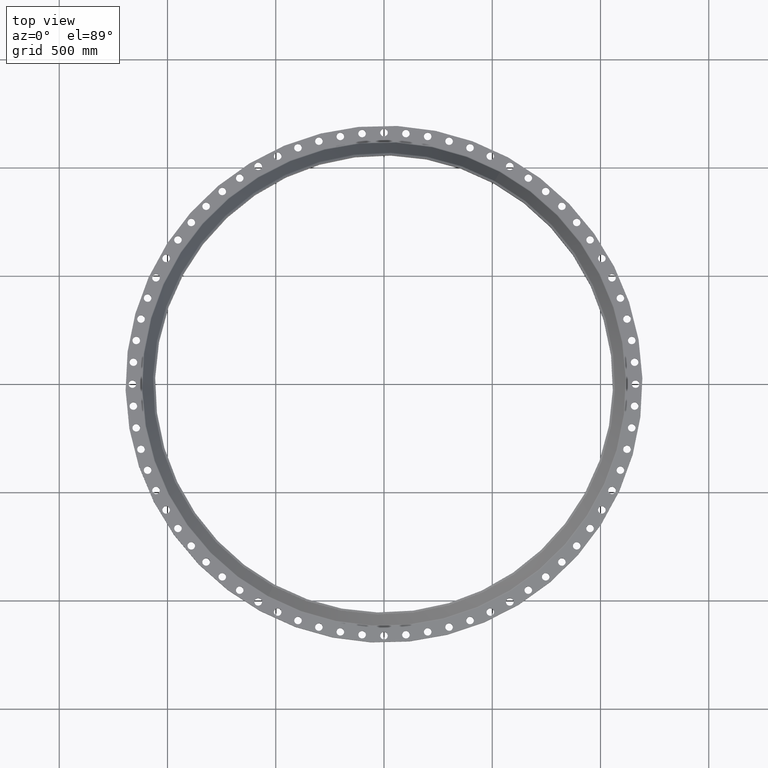
[diagram: clean part render]
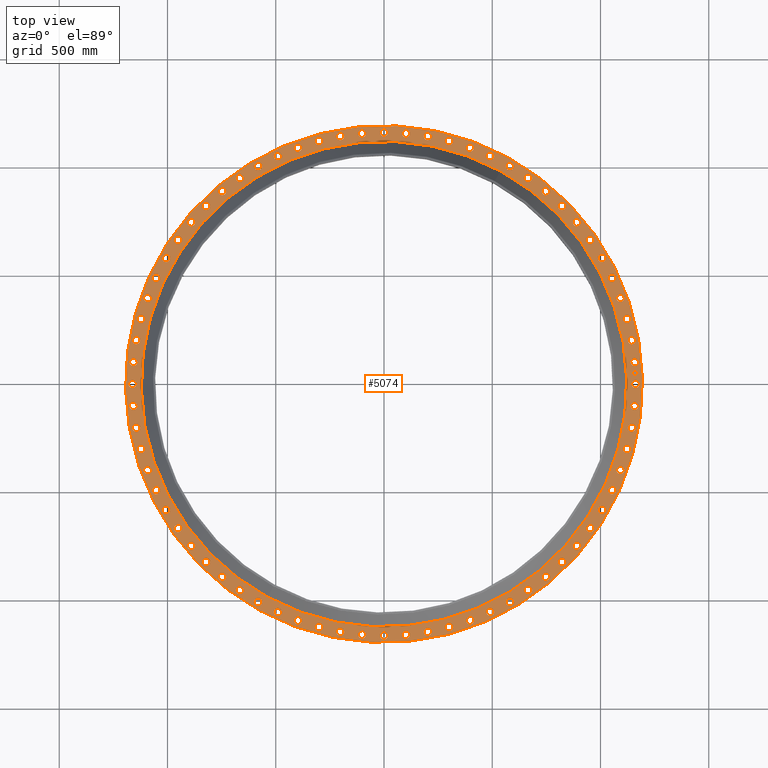
[diagram: same view with one face highlighted and labeled with its STEP entity id]
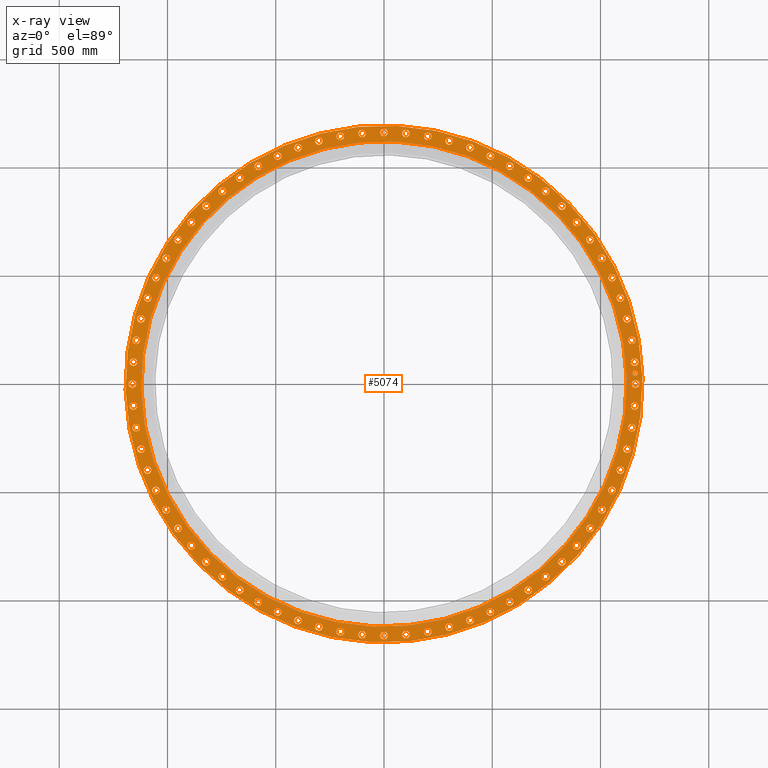
[diagram: x-ray of the same camera — body ghosted, the highlighted face saturated]
A machine part, top view. The second image highlights one B-rep face of the part: STEP entity #5074.
The next image is the same camera in x-ray: the body ghosted, the highlighted face saturated — about 0% of this face is hidden behind the body in this view.
In plain terms, the highlighted planar face has unit normal (0, 0, -1).
Its self-contained STEP definition (entity closure, byte-faithful):
#65=AXIS2_PLACEMENT_3D('Circle Axis2P3D',#63,#64,$) ;
#82=AXIS2_PLACEMENT_3D('Circle Axis2P3D',#80,#81,$) ;
#115=AXIS2_PLACEMENT_3D('Circle Axis2P3D',#113,#114,$) ;
#139=AXIS2_PLACEMENT_3D('Circle Axis2P3D',#137,#138,$) ;
#156=AXIS2_PLACEMENT_3D('Circle Axis2P3D',#154,#155,$) ;
#191=AXIS2_PLACEMENT_3D('Circle Axis2P3D',#189,#190,$) ;
#1723=AXIS2_PLACEMENT_3D('Circle Axis2P3D',#1721,#1722,$) ;
#1735=AXIS2_PLACEMENT_3D('Circle Axis2P3D',#1733,#1734,$) ;
#1766=AXIS2_PLACEMENT_3D('Circle Axis2P3D',#1764,#1765,$) ;
#1778=AXIS2_PLACEMENT_3D('Circle Axis2P3D',#1776,#1777,$) ;
#1809=AXIS2_PLACEMENT_3D('Circle Axis2P3D',#1807,#1808,$) ;
#1821=AXIS2_PLACEMENT_3D('Circle Axis2P3D',#1819,#1820,$) ;
#1852=AXIS2_PLACEMENT_3D('Circle Axis2P3D',#1850,#1851,$) ;
#1864=AXIS2_PLACEMENT_3D('Circle Axis2P3D',#1862,#1863,$) ;
#1895=AXIS2_PLACEMENT_3D('Circle Axis2P3D',#1893,#1894,$) ;
#1907=AXIS2_PLACEMENT_3D('Circle Axis2P3D',#1905,#1906,$) ;
#1938=AXIS2_PLACEMENT_3D('Circle Axis2P3D',#1936,#1937,$) ;
#1950=AXIS2_PLACEMENT_3D('Circle Axis2P3D',#1948,#1949,$) ;
#1981=AXIS2_PLACEMENT_3D('Circle Axis2P3D',#1979,#1980,$) ;
#1993=AXIS2_PLACEMENT_3D('Circle Axis2P3D',#1991,#1992,$) ;
#2024=AXIS2_PLACEMENT_3D('Circle Axis2P3D',#2022,#2023,$) ;
#2036=AXIS2_PLACEMENT_3D('Circle Axis2P3D',#2034,#2035,$) ;
#2067=AXIS2_PLACEMENT_3D('Circle Axis2P3D',#2065,#2066,$) ;
#2079=AXIS2_PLACEMENT_3D('Circle Axis2P3D',#2077,#2078,$) ;
#2110=AXIS2_PLACEMENT_3D('Circle Axis2P3D',#2108,#2109,$) ;
#2122=AXIS2_PLACEMENT_3D('Circle Axis2P3D',#2120,#2121,$) ;
#2153=AXIS2_PLACEMENT_3D('Circle Axis2P3D',#2151,#2152,$) ;
#2165=AXIS2_PLACEMENT_3D('Circle Axis2P3D',#2163,#2164,$) ;
#2196=AXIS2_PLACEMENT_3D('Circle Axis2P3D',#2194,#2195,$) ;
#2208=AXIS2_PLACEMENT_3D('Circle Axis2P3D',#2206,#2207,$) ;
#2239=AXIS2_PLACEMENT_3D('Circle Axis2P3D',#2237,#2238,$) ;
#2251=AXIS2_PLACEMENT_3D('Circle Axis2P3D',#2249,#2250,$) ;
#2282=AXIS2_PLACEMENT_3D('Circle Axis2P3D',#2280,#2281,$) ;
#2294=AXIS2_PLACEMENT_3D('Circle Axis2P3D',#2292,#2293,$) ;
#2325=AXIS2_PLACEMENT_3D('Circle Axis2P3D',#2323,#2324,$) ;
#2337=AXIS2_PLACEMENT_3D('Circle Axis2P3D',#2335,#2336,$) ;
#2368=AXIS2_PLACEMENT_3D('Circle Axis2P3D',#2366,#2367,$) ;
#2380=AXIS2_PLACEMENT_3D('Circle Axis2P3D',#2378,#2379,$) ;
#2411=AXIS2_PLACEMENT_3D('Circle Axis2P3D',#2409,#2410,$) ;
#2423=AXIS2_PLACEMENT_3D('Circle Axis2P3D',#2421,#2422,$) ;
#2454=AXIS2_PLACEMENT_3D('Circle Axis2P3D',#2452,#2453,$) ;
#2466=AXIS2_PLACEMENT_3D('Circle Axis2P3D',#2464,#2465,$) ;
#2497=AXIS2_PLACEMENT_3D('Circle Axis2P3D',#2495,#2496,$) ;
#2509=AXIS2_PLACEMENT_3D('Circle Axis2P3D',#2507,#2508,$) ;
#2540=AXIS2_PLACEMENT_3D('Circle Axis2P3D',#2538,#2539,$) ;
#2552=AXIS2_PLACEMENT_3D('Circle Axis2P3D',#2550,#2551,$) ;
#2583=AXIS2_PLACEMENT_3D('Circle Axis2P3D',#2581,#2582,$) ;
#2595=AXIS2_PLACEMENT_3D('Circle Axis2P3D',#2593,#2594,$) ;
#2626=AXIS2_PLACEMENT_3D('Circle Axis2P3D',#2624,#2625,$) ;
#2638=AXIS2_PLACEMENT_3D('Circle Axis2P3D',#2636,#2637,$) ;
#2669=AXIS2_PLACEMENT_3D('Circle Axis2P3D',#2667,#2668,$) ;
#2681=AXIS2_PLACEMENT_3D('Circle Axis2P3D',#2679,#2680,$) ;
#2712=AXIS2_PLACEMENT_3D('Circle Axis2P3D',#2710,#2711,$) ;
#2724=AXIS2_PLACEMENT_3D('Circle Axis2P3D',#2722,#2723,$) ;
#2755=AXIS2_PLACEMENT_3D('Circle Axis2P3D',#2753,#2754,$) ;
#2767=AXIS2_PLACEMENT_3D('Circle Axis2P3D',#2765,#2766,$) ;
#2798=AXIS2_PLACEMENT_3D('Circle Axis2P3D',#2796,#2797,$) ;
#2810=AXIS2_PLACEMENT_3D('Circle Axis2P3D',#2808,#2809,$) ;
#2841=AXIS2_PLACEMENT_3D('Circle Axis2P3D',#2839,#2840,$) ;
#2853=AXIS2_PLACEMENT_3D('Circle Axis2P3D',#2851,#2852,$) ;
#2884=AXIS2_PLACEMENT_3D('Circle Axis2P3D',#2882,#2883,$) ;
#2896=AXIS2_PLACEMENT_3D('Circle Axis2P3D',#2894,#2895,$) ;
#2927=AXIS2_PLACEMENT_3D('Circle Axis2P3D',#2925,#2926,$) ;
#2939=AXIS2_PLACEMENT_3D('Circle Axis2P3D',#2937,#2938,$) ;
#2970=AXIS2_PLACEMENT_3D('Circle Axis2P3D',#2968,#2969,$) ;
#2982=AXIS2_PLACEMENT_3D('Circle Axis2P3D',#2980,#2981,$) ;
#3013=AXIS2_PLACEMENT_3D('Circle Axis2P3D',#3011,#3012,$) ;
#3025=AXIS2_PLACEMENT_3D('Circle Axis2P3D',#3023,#3024,$) ;
#3056=AXIS2_PLACEMENT_3D('Circle Axis2P3D',#3054,#3055,$) ;
#3068=AXIS2_PLACEMENT_3D('Circle Axis2P3D',#3066,#3067,$) ;
#3099=AXIS2_PLACEMENT_3D('Circle Axis2P3D',#3097,#3098,$) ;
#3111=AXIS2_PLACEMENT_3D('Circle Axis2P3D',#3109,#3110,$) ;
#3142=AXIS2_PLACEMENT_3D('Circle Axis2P3D',#3140,#3141,$) ;
#3154=AXIS2_PLACEMENT_3D('Circle Axis2P3D',#3152,#3153,$) ;
#3185=AXIS2_PLACEMENT_3D('Circle Axis2P3D',#3183,#3184,$) ;
#3197=AXIS2_PLACEMENT_3D('Circle Axis2P3D',#3195,#3196,$) ;
#3228=AXIS2_PLACEMENT_3D('Circle Axis2P3D',#3226,#3227,$) ;
#3240=AXIS2_PLACEMENT_3D('Circle Axis2P3D',#3238,#3239,$) ;
#3271=AXIS2_PLACEMENT_3D('Circle Axis2P3D',#3269,#3270,$) ;
#3283=AXIS2_PLACEMENT_3D('Circle Axis2P3D',#3281,#3282,$) ;
#3314=AXIS2_PLACEMENT_3D('Circle Axis2P3D',#3312,#3313,$) ;
#3326=AXIS2_PLACEMENT_3D('Circle Axis2P3D',#3324,#3325,$) ;
#3357=AXIS2_PLACEMENT_3D('Circle Axis2P3D',#3355,#3356,$) ;
#3369=AXIS2_PLACEMENT_3D('Circle Axis2P3D',#3367,#3368,$) ;
#3400=AXIS2_PLACEMENT_3D('Circle Axis2P3D',#3398,#3399,$) ;
#3412=AXIS2_PLACEMENT_3D('Circle Axis2P3D',#3410,#3411,$) ;
#3443=AXIS2_PLACEMENT_3D('Circle Axis2P3D',#3441,#3442,$) ;
#3455=AXIS2_PLACEMENT_3D('Circle Axis2P3D',#3453,#3454,$) ;
#3486=AXIS2_PLACEMENT_3D('Circle Axis2P3D',#3484,#3485,$) ;
#3498=AXIS2_PLACEMENT_3D('Circle Axis2P3D',#3496,#3497,$) ;
#3529=AXIS2_PLACEMENT_3D('Circle Axis2P3D',#3527,#3528,$) ;
#3541=AXIS2_PLACEMENT_3D('Circle Axis2P3D',#3539,#3540,$) ;
#3572=AXIS2_PLACEMENT_3D('Circle Axis2P3D',#3570,#3571,$) ;
#3584=AXIS2_PLACEMENT_3D('Circle Axis2P3D',#3582,#3583,$) ;
#3615=AXIS2_PLACEMENT_3D('Circle Axis2P3D',#3613,#3614,$) ;
#3627=AXIS2_PLACEMENT_3D('Circle Axis2P3D',#3625,#3626,$) ;
#3658=AXIS2_PLACEMENT_3D('Circle Axis2P3D',#3656,#3657,$) ;
#3670=AXIS2_PLACEMENT_3D('Circle Axis2P3D',#3668,#3669,$) ;
#3701=AXIS2_PLACEMENT_3D('Circle Axis2P3D',#3699,#3700,$) ;
#3713=AXIS2_PLACEMENT_3D('Circle Axis2P3D',#3711,#3712,$) ;
#3744=AXIS2_PLACEMENT_3D('Circle Axis2P3D',#3742,#3743,$) ;
#3756=AXIS2_PLACEMENT_3D('Circle Axis2P3D',#3754,#3755,$) ;
#3787=AXIS2_PLACEMENT_3D('Circle Axis2P3D',#3785,#3786,$) ;
#3799=AXIS2_PLACEMENT_3D('Circle Axis2P3D',#3797,#3798,$) ;
#3830=AXIS2_PLACEMENT_3D('Circle Axis2P3D',#3828,#3829,$) ;
#3842=AXIS2_PLACEMENT_3D('Circle Axis2P3D',#3840,#3841,$) ;
#3873=AXIS2_PLACEMENT_3D('Circle Axis2P3D',#3871,#3872,$) ;
#3885=AXIS2_PLACEMENT_3D('Circle Axis2P3D',#3883,#3884,$) ;
#3916=AXIS2_PLACEMENT_3D('Circle Axis2P3D',#3914,#3915,$) ;
#3928=AXIS2_PLACEMENT_3D('Circle Axis2P3D',#3926,#3927,$) ;
#3959=AXIS2_PLACEMENT_3D('Circle Axis2P3D',#3957,#3958,$) ;
#3971=AXIS2_PLACEMENT_3D('Circle Axis2P3D',#3969,#3970,$) ;
#4002=AXIS2_PLACEMENT_3D('Circle Axis2P3D',#4000,#4001,$) ;
#4014=AXIS2_PLACEMENT_3D('Circle Axis2P3D',#4012,#4013,$) ;
#4045=AXIS2_PLACEMENT_3D('Circle Axis2P3D',#4043,#4044,$) ;
#4057=AXIS2_PLACEMENT_3D('Circle Axis2P3D',#4055,#4056,$) ;
#4088=AXIS2_PLACEMENT_3D('Circle Axis2P3D',#4086,#4087,$) ;
#4100=AXIS2_PLACEMENT_3D('Circle Axis2P3D',#4098,#4099,$) ;
#4131=AXIS2_PLACEMENT_3D('Circle Axis2P3D',#4129,#4130,$) ;
#4143=AXIS2_PLACEMENT_3D('Circle Axis2P3D',#4141,#4142,$) ;
#4174=AXIS2_PLACEMENT_3D('Circle Axis2P3D',#4172,#4173,$) ;
#4186=AXIS2_PLACEMENT_3D('Circle Axis2P3D',#4184,#4185,$) ;
#4217=AXIS2_PLACEMENT_3D('Circle Axis2P3D',#4215,#4216,$) ;
#4229=AXIS2_PLACEMENT_3D('Circle Axis2P3D',#4227,#4228,$) ;
#4260=AXIS2_PLACEMENT_3D('Circle Axis2P3D',#4258,#4259,$) ;
#4272=AXIS2_PLACEMENT_3D('Circle Axis2P3D',#4270,#4271,$) ;
#4303=AXIS2_PLACEMENT_3D('Circle Axis2P3D',#4301,#4302,$) ;
#4315=AXIS2_PLACEMENT_3D('Circle Axis2P3D',#4313,#4314,$) ;
#4346=AXIS2_PLACEMENT_3D('Circle Axis2P3D',#4344,#4345,$) ;
#4358=AXIS2_PLACEMENT_3D('Circle Axis2P3D',#4356,#4357,$) ;
#4389=AXIS2_PLACEMENT_3D('Circle Axis2P3D',#4387,#4388,$) ;
#4401=AXIS2_PLACEMENT_3D('Circle Axis2P3D',#4399,#4400,$) ;
#4432=AXIS2_PLACEMENT_3D('Circle Axis2P3D',#4430,#4431,$) ;
#4444=AXIS2_PLACEMENT_3D('Circle Axis2P3D',#4442,#4443,$) ;
#4475=AXIS2_PLACEMENT_3D('Circle Axis2P3D',#4473,#4474,$) ;
#4487=AXIS2_PLACEMENT_3D('Circle Axis2P3D',#4485,#4486,$) ;
#4518=AXIS2_PLACEMENT_3D('Circle Axis2P3D',#4516,#4517,$) ;
#4530=AXIS2_PLACEMENT_3D('Circle Axis2P3D',#4528,#4529,$) ;
#4561=AXIS2_PLACEMENT_3D('Circle Axis2P3D',#4559,#4560,$) ;
#4573=AXIS2_PLACEMENT_3D('Circle Axis2P3D',#4571,#4572,$) ;
#4604=AXIS2_PLACEMENT_3D('Circle Axis2P3D',#4602,#4603,$) ;
#4616=AXIS2_PLACEMENT_3D('Circle Axis2P3D',#4614,#4615,$) ;
#4647=AXIS2_PLACEMENT_3D('Circle Axis2P3D',#4645,#4646,$) ;
#4659=AXIS2_PLACEMENT_3D('Circle Axis2P3D',#4657,#4658,$) ;
#4690=AXIS2_PLACEMENT_3D('Circle Axis2P3D',#4688,#4689,$) ;
#4702=AXIS2_PLACEMENT_3D('Circle Axis2P3D',#4700,#4701,$) ;
#4733=AXIS2_PLACEMENT_3D('Circle Axis2P3D',#4731,#4732,$) ;
#4745=AXIS2_PLACEMENT_3D('Circle Axis2P3D',#4743,#4744,$) ;
#4758=AXIS2_PLACEMENT_3D('Plane Axis2P3D',#4755,#4756,#4757) ;
#5058=AXIS2_PLACEMENT_3D('Circle Axis2P3D',#5056,#5057,$) ;
#5067=AXIS2_PLACEMENT_3D('Circle Axis2P3D',#5065,#5066,$) ;
#46=CARTESIAN_POINT('Vertex',(45.1444680325,0.330803621638,3.00000000001)) ;
#60=CARTESIAN_POINT('Vertex',(46.3555319679,-0.330803621638,3.00000000001)) ;
#63=CARTESIAN_POINT('Axis2P3D Location',(45.7500000002,0.,3.00000000001)) ;
#80=CARTESIAN_POINT('Axis2P3D Location',(45.7500000002,0.,3.00000000001)) ;
#110=CARTESIAN_POINT('Vertex',(-22.5330003145,-41.246380409,3.00000000001)) ;
#113=CARTESIAN_POINT('Axis2P3D Location',(0.,0.,3.00000000001)) ;
#117=CARTESIAN_POINT('Vertex',(22.5330003145,41.246380409,3.00000000001)) ;
#137=CARTESIAN_POINT('Axis2P3D Location',(0.,0.,3.00000000001)) ;
#154=CARTESIAN_POINT('Axis2P3D Location',(0.,0.,3.00000000001)) ;
#158=CARTESIAN_POINT('Vertex',(21.1645145779,38.7413840708,3.00000000001)) ;
#160=CARTESIAN_POINT('Vertex',(-21.1645145779,-38.7413840708,3.00000000001)) ;
#189=CARTESIAN_POINT('Axis2P3D Location',(0.,0.,3.00000000001)) ;
#1711=CARTESIAN_POINT('Vertex',(-45.0015111375,3.60505482833,3.00000000001)) ;
#1718=CARTESIAN_POINT('Vertex',(-46.1503037383,4.36969563311,3.00000000001)) ;
#1721=CARTESIAN_POINT('Axis2P3D Location',(-45.5759074379,3.98737523072,3.00000000001)) ;
#1733=CARTESIAN_POINT('Axis2P3D Location',(-45.5759074379,3.98737523072,3.00000000001)) ;
#1754=CARTESIAN_POINT('Vertex',(44.5160655701,-7.51347663427,3.00000000001)) ;
#1761=CARTESIAN_POINT('Vertex',(45.5938438309,-8.37533162232,3.00000000001)) ;
#1764=CARTESIAN_POINT('Axis2P3D Location',(45.0549547005,-7.94440412829,3.00000000001)) ;
#1776=CARTESIAN_POINT('Axis2P3D Location',(45.0549547005,-7.94440412829,3.00000000001)) ;
#1797=CARTESIAN_POINT('Vertex',(-44.5160655701,7.51347663427,3.00000000001)) ;
#1804=CARTESIAN_POINT('Vertex',(-45.5938438309,8.37533162232,3.00000000001)) ;
#1807=CARTESIAN_POINT('Axis2P3D Location',(-45.0549547005,7.94440412829,3.00000000001)) ;
#1819=CARTESIAN_POINT('Axis2P3D Location',(-45.0549547005,7.94440412829,3.00000000001)) ;
#1840=CARTESIAN_POINT('Vertex',(43.6918258641,-11.3647163463,3.00000000001)) ;
#1847=CARTESIAN_POINT('Vertex',(44.6903872417,-12.3172262807,3.00000000001)) ;
#1850=CARTESIAN_POINT('Axis2P3D Location',(44.1911065529,-11.8409713135,3.00000000001)) ;
#1862=CARTESIAN_POINT('Axis2P3D Location',(44.1911065529,-11.8409713135,3.00000000001)) ;
#1883=CARTESIAN_POINT('Vertex',(-43.6918258641,11.3647163463,3.00000000001)) ;
#1890=CARTESIAN_POINT('Vertex',(-44.6903872417,12.3172262807,3.00000000001)) ;
#1893=CARTESIAN_POINT('Axis2P3D Location',(-44.1911065529,11.8409713135,3.00000000001)) ;
#1905=CARTESIAN_POINT('Axis2P3D Location',(-44.1911065529,11.8409713135,3.00000000001)) ;
#1926=CARTESIAN_POINT('Vertex',(42.5350649815,-15.1294637046,3.00000000001)) ;
#1933=CARTESIAN_POINT('Vertex',(43.4468098207,-16.1653794098,3.00000000001)) ;
#1936=CARTESIAN_POINT('Axis2P3D Location',(42.9909374011,-15.6474215572,3.00000000001)) ;
#1948=CARTESIAN_POINT('Axis2P3D Location',(42.9909374011,-15.6474215572,3.00000000001)) ;
#1969=CARTESIAN_POINT('Vertex',(-42.5350649815,15.1294637046,3.00000000001)) ;
#1976=CARTESIAN_POINT('Vertex',(-43.4468098207,16.1653794098,3.00000000001)) ;
#1979=CARTESIAN_POINT('Axis2P3D Location',(-42.9909374011,15.6474215572,3.00000000001)) ;
#1991=CARTESIAN_POINT('Axis2P3D Location',(-42.9909374011,15.6474215572,3.00000000001)) ;
#2012=CARTESIAN_POINT('Vertex',(41.054586571,-18.7790667088,3.00000000001)) ;
#2019=CARTESIAN_POINT('Vertex',(41.8725759432,-19.8905042406,3.00000000001)) ;
#2022=CARTESIAN_POINT('Axis2P3D Location',(41.4635812571,-19.3347854747,3.00000000001)) ;
#2034=CARTESIAN_POINT('Axis2P3D Location',(41.4635812571,-19.3347854747,3.00000000001)) ;
#2055=CARTESIAN_POINT('Vertex',(-41.054586571,18.7790667088,3.00000000001)) ;
#2062=CARTESIAN_POINT('Vertex',(-41.8725759432,19.8905042406,3.00000000001)) ;
#2065=CARTESIAN_POINT('Axis2P3D Location',(-41.4635812571,19.3347854747,3.00000000001)) ;
#2077=CARTESIAN_POINT('Axis2P3D Location',(-41.4635812571,19.3347854747,3.00000000001)) ;
#2098=CARTESIAN_POINT('Vertex',(39.2616579673,-22.2857496762,3.00000000001)) ;
#2105=CARTESIAN_POINT('Vertex',(39.9796664793,-23.4642503239,3.00000000001)) ;
#2108=CARTESIAN_POINT('Axis2P3D Location',(39.6206622233,-22.8750000001,3.00000000001)) ;
#2120=CARTESIAN_POINT('Axis2P3D Location',(39.6206622233,-22.8750000001,3.00000000001)) ;
#2141=CARTESIAN_POINT('Vertex',(-39.2616579673,22.2857496762,3.00000000001)) ;
#2148=CARTESIAN_POINT('Vertex',(-39.9796664793,23.4642503239,3.00000000001)) ;
#2151=CARTESIAN_POINT('Axis2P3D Location',(-39.6206622233,22.8750000001,3.00000000001)) ;
#2163=CARTESIAN_POINT('Axis2P3D Location',(-39.6206622233,22.8750000001,3.00000000001)) ;
#2184=CARTESIAN_POINT('Vertex',(37.1699244396,-25.6228246321,3.00000000001)) ;
#2191=CARTESIAN_POINT('Vertex',(37.7824876132,-26.8594192942,3.00000000001)) ;
#2194=CARTESIAN_POINT('Axis2P3D Location',(37.4762060264,-26.2411219632,3.00000000001)) ;
#2206=CARTESIAN_POINT('Axis2P3D Location',(37.4762060264,-26.2411219632,3.00000000001)) ;
#2227=CARTESIAN_POINT('Vertex',(-37.1699244396,25.6228246321,3.00000000001)) ;
#2234=CARTESIAN_POINT('Vertex',(-37.7824876132,26.8594192942,3.00000000001)) ;
#2237=CARTESIAN_POINT('Axis2P3D Location',(-37.4762060264,26.2411219632,3.00000000001)) ;
#2249=CARTESIAN_POINT('Axis2P3D Location',(-37.4762060264,26.2411219632,3.00000000001)) ;
#2270=CARTESIAN_POINT('Vertex',(34.7953053431,-28.764894421,3.00000000001)) ;
#2277=CARTESIAN_POINT('Vertex',(35.2977612026,-30.0501718655,3.00000000001)) ;
#2280=CARTESIAN_POINT('Axis2P3D Location',(35.0465332728,-29.4075331433,3.00000000001)) ;
#2292=CARTESIAN_POINT('Axis2P3D Location',(35.0465332728,-29.4075331433,3.00000000001)) ;
#2313=CARTESIAN_POINT('Vertex',(-34.7953053431,28.764894421,3.00000000001)) ;
#2320=CARTESIAN_POINT('Vertex',(-35.2977612026,30.0501718655,3.00000000001)) ;
#2323=CARTESIAN_POINT('Axis2P3D Location',(-35.0465332728,29.4075331433,3.00000000001)) ;
#2335=CARTESIAN_POINT('Axis2P3D Location',(-35.0465332728,29.4075331433,3.00000000001)) ;
#2356=CARTESIAN_POINT('Vertex',(32.1558729629,-31.6880459947,3.00000000001)) ;
#2363=CARTESIAN_POINT('Vertex',(32.5443975159,-33.0122244841,3.00000000001)) ;
#2366=CARTESIAN_POINT('Axis2P3D Location',(32.3501352394,-32.3501352394,3.00000000001)) ;
#2378=CARTESIAN_POINT('Axis2P3D Location',(32.3501352394,-32.3501352394,3.00000000001)) ;
#2399=CARTESIAN_POINT('Vertex',(-32.1558729629,31.6880459947,3.00000000001)) ;
#2406=CARTESIAN_POINT('Vertex',(-32.5443975159,33.0122244841,3.00000000001)) ;
#2409=CARTESIAN_POINT('Axis2P3D Location',(-32.3501352394,32.3501352394,3.00000000001)) ;
#2421=CARTESIAN_POINT('Axis2P3D Location',(-32.3501352394,32.3501352394,3.00000000001)) ;
#2442=CARTESIAN_POINT('Vertex',(29.2717149733,-34.3700324046,3.00000000001)) ;
#2449=CARTESIAN_POINT('Vertex',(29.5433513133,-35.7230341411,3.00000000001)) ;
#2452=CARTESIAN_POINT('Axis2P3D Location',(29.4075331433,-35.0465332728,3.00000000001)) ;
#2464=CARTESIAN_POINT('Axis2P3D Location',(29.4075331433,-35.0465332728,3.00000000001)) ;
#2485=CARTESIAN_POINT('Vertex',(-29.2717149733,34.3700324046,3.00000000001)) ;
#2492=CARTESIAN_POINT('Vertex',(-29.5433513133,35.7230341411,3.00000000001)) ;
#2495=CARTESIAN_POINT('Axis2P3D Location',(-29.4075331433,35.0465332728,3.00000000001)) ;
#2507=CARTESIAN_POINT('Axis2P3D Location',(-29.4075331433,35.0465332728,3.00000000001)) ;
#2528=CARTESIAN_POINT('Vertex',(26.164781558,-36.7904421147,3.00000000001)) ;
#2535=CARTESIAN_POINT('Vertex',(26.3174623684,-38.161969938,3.00000000001)) ;
#2538=CARTESIAN_POINT('Axis2P3D Location',(26.2411219632,-37.4762060264,3.00000000001)) ;
#2550=CARTESIAN_POINT('Axis2P3D Location',(26.2411219632,-37.4762060264,3.00000000001)) ;
#2571=CARTESIAN_POINT('Vertex',(-26.164781558,36.7904421147,3.00000000001)) ;
#2578=CARTESIAN_POINT('Vertex',(-26.3174623684,38.161969938,3.00000000001)) ;
#2581=CARTESIAN_POINT('Axis2P3D Location',(-26.2411219632,37.4762060264,3.00000000001)) ;
#2593=CARTESIAN_POINT('Axis2P3D Location',(-26.2411219632,37.4762060264,3.00000000001)) ;
#2614=CARTESIAN_POINT('Vertex',(22.8587183562,-38.9308543456,3.00000000001)) ;
#2621=CARTESIAN_POINT('Vertex',(22.8912816439,-40.310470101,3.00000000001)) ;
#2624=CARTESIAN_POINT('Axis2P3D Location',(22.8750000001,-39.6206622233,3.00000000001)) ;
#2636=CARTESIAN_POINT('Axis2P3D Location',(22.8750000001,-39.6206622233,3.00000000001)) ;
#2657=CARTESIAN_POINT('Vertex',(-22.8587183562,38.9308543456,3.00000000001)) ;
#2664=CARTESIAN_POINT('Vertex',(-22.8912816439,40.310470101,3.00000000001)) ;
#2667=CARTESIAN_POINT('Axis2P3D Location',(-22.8750000001,39.6206622233,3.00000000001)) ;
#2679=CARTESIAN_POINT('Axis2P3D Location',(-22.8750000001,39.6206622233,3.00000000001)) ;
#2700=CARTESIAN_POINT('Vertex',(19.3786865054,-40.7749792679,3.00000000001)) ;
#2707=CARTESIAN_POINT('Vertex',(19.2908844441,-42.1521832463,3.00000000001)) ;
#2710=CARTESIAN_POINT('Axis2P3D Location',(19.3347854747,-41.4635812571,3.00000000001)) ;
#2722=CARTESIAN_POINT('Axis2P3D Location',(19.3347854747,-41.4635812571,3.00000000001)) ;
#2743=CARTESIAN_POINT('Vertex',(-19.3786865054,40.7749792679,3.00000000001)) ;
#2750=CARTESIAN_POINT('Vertex',(-19.2908844441,42.1521832463,3.00000000001)) ;
#2753=CARTESIAN_POINT('Axis2P3D Location',(-19.3347854747,41.4635812571,3.00000000001)) ;
#2765=CARTESIAN_POINT('Axis2P3D Location',(-19.3347854747,41.4635812571,3.00000000001)) ;
#2786=CARTESIAN_POINT('Vertex',(15.751171149,-42.3087819773,3.00000000001)) ;
#2793=CARTESIAN_POINT('Vertex',(15.5436719654,-43.6730928249,3.00000000001)) ;
#2796=CARTESIAN_POINT('Axis2P3D Location',(15.6474215572,-42.9909374011,3.00000000001)) ;
#2808=CARTESIAN_POINT('Axis2P3D Location',(15.6474215572,-42.9909374011,3.00000000001)) ;
#2829=CARTESIAN_POINT('Vertex',(-15.751171149,42.3087819773,3.00000000001)) ;
#2836=CARTESIAN_POINT('Vertex',(-15.5436719654,43.6730928249,3.00000000001)) ;
#2839=CARTESIAN_POINT('Axis2P3D Location',(-15.6474215572,42.9909374011,3.00000000001)) ;
#2851=CARTESIAN_POINT('Axis2P3D Location',(-15.6474215572,42.9909374011,3.00000000001)) ;
#2872=CARTESIAN_POINT('Vertex',(12.0037798694,-43.5205893092,3.00000000001)) ;
#2879=CARTESIAN_POINT('Vertex',(11.6781627576,-44.8616237966,3.00000000001)) ;
#2882=CARTESIAN_POINT('Axis2P3D Location',(11.8409713135,-44.1911065529,3.00000000001)) ;
#2894=CARTESIAN_POINT('Axis2P3D Location',(11.8409713135,-44.1911065529,3.00000000001)) ;
#2915=CARTESIAN_POINT('Vertex',(-12.0037798694,43.5205893092,3.00000000001)) ;
#2922=CARTESIAN_POINT('Vertex',(-11.6781627576,44.8616237966,3.00000000001)) ;
#2925=CARTESIAN_POINT('Axis2P3D Location',(-11.8409713135,44.1911065529,3.00000000001)) ;
#2937=CARTESIAN_POINT('Axis2P3D Location',(-11.8409713135,44.1911065529,3.00000000001)) ;
#2958=CARTESIAN_POINT('Vertex',(8.1650325769,-44.4011786779,3.00000000001)) ;
#2965=CARTESIAN_POINT('Vertex',(7.72377567969,-45.708730723,3.00000000001)) ;
#2968=CARTESIAN_POINT('Axis2P3D Location',(7.94440412829,-45.0549547005,3.00000000001)) ;
#2980=CARTESIAN_POINT('Axis2P3D Location',(7.94440412829,-45.0549547005,3.00000000001)) ;
#3001=CARTESIAN_POINT('Vertex',(-8.1650325769,44.4011786779,3.00000000001)) ;
#3008=CARTESIAN_POINT('Vertex',(-7.72377567969,45.708730723,3.00000000001)) ;
#3011=CARTESIAN_POINT('Axis2P3D Location',(-7.94440412829,45.0549547005,3.00000000001)) ;
#3023=CARTESIAN_POINT('Axis2P3D Location',(-7.94440412829,45.0549547005,3.00000000001)) ;
#3044=CARTESIAN_POINT('Vertex',(4.2641444563,-44.9438482668,3.00000000001)) ;
#3051=CARTESIAN_POINT('Vertex',(3.71060600514,-46.207966609,3.00000000001)) ;
#3054=CARTESIAN_POINT('Axis2P3D Location',(3.98737523072,-45.5759074379,3.00000000001)) ;
#3066=CARTESIAN_POINT('Axis2P3D Location',(3.98737523072,-45.5759074379,3.00000000001)) ;
#3087=CARTESIAN_POINT('Vertex',(-4.2641444563,44.9438482668,3.00000000001)) ;
#3094=CARTESIAN_POINT('Vertex',(-3.71060600514,46.207966609,3.00000000001)) ;
#3097=CARTESIAN_POINT('Axis2P3D Location',(-3.98737523072,45.5759074379,3.00000000001)) ;
#3109=CARTESIAN_POINT('Axis2P3D Location',(-3.98737523072,45.5759074379,3.00000000001)) ;
#3130=CARTESIAN_POINT('Vertex',(0.330803621638,-45.1444680325,3.00000000001)) ;
#3137=CARTESIAN_POINT('Vertex',(-0.330803621638,-46.3555319679,3.00000000001)) ;
#3140=CARTESIAN_POINT('Axis2P3D Location',(-6.15033995258E-015,-45.7500000002,3.00000000001)) ;
#3152=CARTESIAN_POINT('Axis2P3D Location',(-6.15033995258E-015,-45.7500000002,3.00000000001)) ;
#3173=CARTESIAN_POINT('Vertex',(-0.330803621638,45.1444680325,3.00000000001)) ;
#3180=CARTESIAN_POINT('Vertex',(0.330803621638,46.3555319679,3.00000000001)) ;
#3183=CARTESIAN_POINT('Axis2P3D Location',(-8.40413865918E-015,45.7500000002,3.00000000001)) ;
#3195=CARTESIAN_POINT('Axis2P3D Location',(-8.40413865918E-015,45.7500000002,3.00000000001)) ;
#3216=CARTESIAN_POINT('Vertex',(-3.60505482833,-45.0015111375,3.00000000001)) ;
#3223=CARTESIAN_POINT('Vertex',(-4.36969563311,-46.1503037383,3.00000000001)) ;
#3226=CARTESIAN_POINT('Axis2P3D Location',(-3.98737523072,-45.5759074379,3.00000000001)) ;
#3238=CARTESIAN_POINT('Axis2P3D Location',(-3.98737523072,-45.5759074379,3.00000000001)) ;
#3259=CARTESIAN_POINT('Vertex',(3.60505482833,45.0015111375,3.00000000001)) ;
#3266=CARTESIAN_POINT('Vertex',(4.36969563311,46.1503037383,3.00000000001)) ;
#3269=CARTESIAN_POINT('Axis2P3D Location',(3.98737523072,45.5759074379,3.00000000001)) ;
#3281=CARTESIAN_POINT('Axis2P3D Location',(3.98737523072,45.5759074379,3.00000000001)) ;
#3302=CARTESIAN_POINT('Vertex',(-7.51347663427,-44.5160655701,3.00000000001)) ;
#3309=CARTESIAN_POINT('Vertex',(-8.37533162232,-45.5938438309,3.00000000001)) ;
#3312=CARTESIAN_POINT('Axis2P3D Location',(-7.94440412829,-45.0549547005,3.00000000001)) ;
#3324=CARTESIAN_POINT('Axis2P3D Location',(-7.94440412829,-45.0549547005,3.00000000001)) ;
#3345=CARTESIAN_POINT('Vertex',(7.51347663427,44.5160655701,3.00000000001)) ;
#3352=CARTESIAN_POINT('Vertex',(8.37533162232,45.5938438309,3.00000000001)) ;
#3355=CARTESIAN_POINT('Axis2P3D Location',(7.94440412829,45.0549547005,3.00000000001)) ;
#3367=CARTESIAN_POINT('Axis2P3D Location',(7.94440412829,45.0549547005,3.00000000001)) ;
#3388=CARTESIAN_POINT('Vertex',(-11.3647163463,-43.6918258641,3.00000000001)) ;
#3395=CARTESIAN_POINT('Vertex',(-12.3172262807,-44.6903872417,3.00000000001)) ;
#3398=CARTESIAN_POINT('Axis2P3D Location',(-11.8409713135,-44.1911065529,3.00000000001)) ;
#3410=CARTESIAN_POINT('Axis2P3D Location',(-11.8409713135,-44.1911065529,3.00000000001)) ;
#3431=CARTESIAN_POINT('Vertex',(11.3647163463,43.6918258641,3.00000000001)) ;
#3438=CARTESIAN_POINT('Vertex',(12.3172262807,44.6903872417,3.00000000001)) ;
#3441=CARTESIAN_POINT('Axis2P3D Location',(11.8409713135,44.1911065529,3.00000000001)) ;
#3453=CARTESIAN_POINT('Axis2P3D Location',(11.8409713135,44.1911065529,3.00000000001)) ;
#3474=CARTESIAN_POINT('Vertex',(-15.1294637046,-42.5350649815,3.00000000001)) ;
#3481=CARTESIAN_POINT('Vertex',(-16.1653794098,-43.4468098207,3.00000000001)) ;
#3484=CARTESIAN_POINT('Axis2P3D Location',(-15.6474215572,-42.9909374011,3.00000000001)) ;
#3496=CARTESIAN_POINT('Axis2P3D Location',(-15.6474215572,-42.9909374011,3.00000000001)) ;
#3517=CARTESIAN_POINT('Vertex',(15.1294637046,42.5350649815,3.00000000001)) ;
#3524=CARTESIAN_POINT('Vertex',(16.1653794098,43.4468098207,3.00000000001)) ;
#3527=CARTESIAN_POINT('Axis2P3D Location',(15.6474215572,42.9909374011,3.00000000001)) ;
#3539=CARTESIAN_POINT('Axis2P3D Location',(15.6474215572,42.9909374011,3.00000000001)) ;
#3560=CARTESIAN_POINT('Vertex',(-18.7790667088,-41.054586571,3.00000000001)) ;
#3567=CARTESIAN_POINT('Vertex',(-19.8905042406,-41.8725759432,3.00000000001)) ;
#3570=CARTESIAN_POINT('Axis2P3D Location',(-19.3347854747,-41.4635812571,3.00000000001)) ;
#3582=CARTESIAN_POINT('Axis2P3D Location',(-19.3347854747,-41.4635812571,3.00000000001)) ;
#3603=CARTESIAN_POINT('Vertex',(18.7790667088,41.054586571,3.00000000001)) ;
#3610=CARTESIAN_POINT('Vertex',(19.8905042406,41.8725759432,3.00000000001)) ;
#3613=CARTESIAN_POINT('Axis2P3D Location',(19.3347854747,41.4635812571,3.00000000001)) ;
#3625=CARTESIAN_POINT('Axis2P3D Location',(19.3347854747,41.4635812571,3.00000000001)) ;
#3646=CARTESIAN_POINT('Vertex',(-22.2857496762,-39.2616579673,3.00000000001)) ;
#3653=CARTESIAN_POINT('Vertex',(-23.4642503239,-39.9796664793,3.00000000001)) ;
#3656=CARTESIAN_POINT('Axis2P3D Location',(-22.8750000001,-39.6206622233,3.00000000001)) ;
#3668=CARTESIAN_POINT('Axis2P3D Location',(-22.8750000001,-39.6206622233,3.00000000001)) ;
#3689=CARTESIAN_POINT('Vertex',(22.2857496762,39.2616579673,3.00000000001)) ;
#3696=CARTESIAN_POINT('Vertex',(23.4642503239,39.9796664793,3.00000000001)) ;
#3699=CARTESIAN_POINT('Axis2P3D Location',(22.8750000001,39.6206622233,3.00000000001)) ;
#3711=CARTESIAN_POINT('Axis2P3D Location',(22.8750000001,39.6206622233,3.00000000001)) ;
#3732=CARTESIAN_POINT('Vertex',(-25.6228246321,-37.1699244396,3.00000000001)) ;
#3739=CARTESIAN_POINT('Vertex',(-26.8594192942,-37.7824876132,3.00000000001)) ;
#3742=CARTESIAN_POINT('Axis2P3D Location',(-26.2411219632,-37.4762060264,3.00000000001)) ;
#3754=CARTESIAN_POINT('Axis2P3D Location',(-26.2411219632,-37.4762060264,3.00000000001)) ;
#3775=CARTESIAN_POINT('Vertex',(25.6228246321,37.1699244396,3.00000000001)) ;
#3782=CARTESIAN_POINT('Vertex',(26.8594192942,37.7824876132,3.00000000001)) ;
#3785=CARTESIAN_POINT('Axis2P3D Location',(26.2411219632,37.4762060264,3.00000000001)) ;
#3797=CARTESIAN_POINT('Axis2P3D Location',(26.2411219632,37.4762060264,3.00000000001)) ;
#3818=CARTESIAN_POINT('Vertex',(-28.764894421,-34.7953053431,3.00000000001)) ;
#3825=CARTESIAN_POINT('Vertex',(-30.0501718655,-35.2977612026,3.00000000001)) ;
#3828=CARTESIAN_POINT('Axis2P3D Location',(-29.4075331433,-35.0465332728,3.00000000001)) ;
#3840=CARTESIAN_POINT('Axis2P3D Location',(-29.4075331433,-35.0465332728,3.00000000001)) ;
#3861=CARTESIAN_POINT('Vertex',(28.764894421,34.7953053431,3.00000000001)) ;
#3868=CARTESIAN_POINT('Vertex',(30.0501718655,35.2977612026,3.00000000001)) ;
#3871=CARTESIAN_POINT('Axis2P3D Location',(29.4075331433,35.0465332728,3.00000000001)) ;
#3883=CARTESIAN_POINT('Axis2P3D Location',(29.4075331433,35.0465332728,3.00000000001)) ;
#3904=CARTESIAN_POINT('Vertex',(-31.6880459947,-32.1558729629,3.00000000001)) ;
#3911=CARTESIAN_POINT('Vertex',(-33.0122244841,-32.5443975159,3.00000000001)) ;
#3914=CARTESIAN_POINT('Axis2P3D Location',(-32.3501352394,-32.3501352394,3.00000000001)) ;
#3926=CARTESIAN_POINT('Axis2P3D Location',(-32.3501352394,-32.3501352394,3.00000000001)) ;
#3947=CARTESIAN_POINT('Vertex',(31.6880459947,32.1558729629,3.00000000001)) ;
#3954=CARTESIAN_POINT('Vertex',(33.0122244841,32.5443975159,3.00000000001)) ;
#3957=CARTESIAN_POINT('Axis2P3D Location',(32.3501352394,32.3501352394,3.00000000001)) ;
#3969=CARTESIAN_POINT('Axis2P3D Location',(32.3501352394,32.3501352394,3.00000000001)) ;
#3990=CARTESIAN_POINT('Vertex',(-34.3700324046,-29.2717149733,3.00000000001)) ;
#3997=CARTESIAN_POINT('Vertex',(-35.7230341411,-29.5433513133,3.00000000001)) ;
#4000=CARTESIAN_POINT('Axis2P3D Location',(-35.0465332728,-29.4075331433,3.00000000001)) ;
#4012=CARTESIAN_POINT('Axis2P3D Location',(-35.0465332728,-29.4075331433,3.00000000001)) ;
#4033=CARTESIAN_POINT('Vertex',(34.3700324046,29.2717149733,3.00000000001)) ;
#4040=CARTESIAN_POINT('Vertex',(35.7230341411,29.5433513133,3.00000000001)) ;
#4043=CARTESIAN_POINT('Axis2P3D Location',(35.0465332728,29.4075331433,3.00000000001)) ;
#4055=CARTESIAN_POINT('Axis2P3D Location',(35.0465332728,29.4075331433,3.00000000001)) ;
#4076=CARTESIAN_POINT('Vertex',(-36.7904421147,-26.164781558,3.00000000001)) ;
#4083=CARTESIAN_POINT('Vertex',(-38.161969938,-26.3174623684,3.00000000001)) ;
#4086=CARTESIAN_POINT('Axis2P3D Location',(-37.4762060264,-26.2411219632,3.00000000001)) ;
#4098=CARTESIAN_POINT('Axis2P3D Location',(-37.4762060264,-26.2411219632,3.00000000001)) ;
#4119=CARTESIAN_POINT('Vertex',(36.7904421147,26.164781558,3.00000000001)) ;
#4126=CARTESIAN_POINT('Vertex',(38.161969938,26.3174623684,3.00000000001)) ;
#4129=CARTESIAN_POINT('Axis2P3D Location',(37.4762060264,26.2411219632,3.00000000001)) ;
#4141=CARTESIAN_POINT('Axis2P3D Location',(37.4762060264,26.2411219632,3.00000000001)) ;
#4162=CARTESIAN_POINT('Vertex',(-38.9308543456,-22.8587183562,3.00000000001)) ;
#4169=CARTESIAN_POINT('Vertex',(-40.310470101,-22.8912816439,3.00000000001)) ;
#4172=CARTESIAN_POINT('Axis2P3D Location',(-39.6206622233,-22.8750000001,3.00000000001)) ;
#4184=CARTESIAN_POINT('Axis2P3D Location',(-39.6206622233,-22.8750000001,3.00000000001)) ;
#4205=CARTESIAN_POINT('Vertex',(38.9308543456,22.8587183562,3.00000000001)) ;
#4212=CARTESIAN_POINT('Vertex',(40.310470101,22.8912816439,3.00000000001)) ;
#4215=CARTESIAN_POINT('Axis2P3D Location',(39.6206622233,22.8750000001,3.00000000001)) ;
#4227=CARTESIAN_POINT('Axis2P3D Location',(39.6206622233,22.8750000001,3.00000000001)) ;
#4248=CARTESIAN_POINT('Vertex',(-40.7749792679,-19.3786865054,3.00000000001)) ;
#4255=CARTESIAN_POINT('Vertex',(-42.1521832463,-19.2908844441,3.00000000001)) ;
#4258=CARTESIAN_POINT('Axis2P3D Location',(-41.4635812571,-19.3347854747,3.00000000001)) ;
#4270=CARTESIAN_POINT('Axis2P3D Location',(-41.4635812571,-19.3347854747,3.00000000001)) ;
#4291=CARTESIAN_POINT('Vertex',(40.7749792679,19.3786865054,3.00000000001)) ;
#4298=CARTESIAN_POINT('Vertex',(42.1521832463,19.2908844441,3.00000000001)) ;
#4301=CARTESIAN_POINT('Axis2P3D Location',(41.4635812571,19.3347854747,3.00000000001)) ;
#4313=CARTESIAN_POINT('Axis2P3D Location',(41.4635812571,19.3347854747,3.00000000001)) ;
#4334=CARTESIAN_POINT('Vertex',(-42.3087819773,-15.751171149,3.00000000001)) ;
#4341=CARTESIAN_POINT('Vertex',(-43.6730928249,-15.5436719654,3.00000000001)) ;
#4344=CARTESIAN_POINT('Axis2P3D Location',(-42.9909374011,-15.6474215572,3.00000000001)) ;
#4356=CARTESIAN_POINT('Axis2P3D Location',(-42.9909374011,-15.6474215572,3.00000000001)) ;
#4377=CARTESIAN_POINT('Vertex',(42.3087819773,15.751171149,3.00000000001)) ;
#4384=CARTESIAN_POINT('Vertex',(43.6730928249,15.5436719654,3.00000000001)) ;
#4387=CARTESIAN_POINT('Axis2P3D Location',(42.9909374011,15.6474215572,3.00000000001)) ;
#4399=CARTESIAN_POINT('Axis2P3D Location',(42.9909374011,15.6474215572,3.00000000001)) ;
#4420=CARTESIAN_POINT('Vertex',(-43.5205893092,-12.0037798694,3.00000000001)) ;
#4427=CARTESIAN_POINT('Vertex',(-44.8616237966,-11.6781627576,3.00000000001)) ;
#4430=CARTESIAN_POINT('Axis2P3D Location',(-44.1911065529,-11.8409713135,3.00000000001)) ;
#4442=CARTESIAN_POINT('Axis2P3D Location',(-44.1911065529,-11.8409713135,3.00000000001)) ;
#4463=CARTESIAN_POINT('Vertex',(43.5205893092,12.0037798694,3.00000000001)) ;
#4470=CARTESIAN_POINT('Vertex',(44.8616237966,11.6781627576,3.00000000001)) ;
#4473=CARTESIAN_POINT('Axis2P3D Location',(44.1911065529,11.8409713135,3.00000000001)) ;
#4485=CARTESIAN_POINT('Axis2P3D Location',(44.1911065529,11.8409713135,3.00000000001)) ;
#4506=CARTESIAN_POINT('Vertex',(-44.4011786779,-8.1650325769,3.00000000001)) ;
#4513=CARTESIAN_POINT('Vertex',(-45.708730723,-7.72377567969,3.00000000001)) ;
#4516=CARTESIAN_POINT('Axis2P3D Location',(-45.0549547005,-7.94440412829,3.00000000001)) ;
#4528=CARTESIAN_POINT('Axis2P3D Location',(-45.0549547005,-7.94440412829,3.00000000001)) ;
#4549=CARTESIAN_POINT('Vertex',(44.4011786779,8.1650325769,3.00000000001)) ;
#4556=CARTESIAN_POINT('Vertex',(45.708730723,7.72377567969,3.00000000001)) ;
#4559=CARTESIAN_POINT('Axis2P3D Location',(45.0549547005,7.94440412829,3.00000000001)) ;
#4571=CARTESIAN_POINT('Axis2P3D Location',(45.0549547005,7.94440412829,3.00000000001)) ;
#4592=CARTESIAN_POINT('Vertex',(-44.9438482668,-4.2641444563,3.00000000001)) ;
#4599=CARTESIAN_POINT('Vertex',(-46.207966609,-3.71060600514,3.00000000001)) ;
#4602=CARTESIAN_POINT('Axis2P3D Location',(-45.5759074379,-3.98737523072,3.00000000001)) ;
#4614=CARTESIAN_POINT('Axis2P3D Location',(-45.5759074379,-3.98737523072,3.00000000001)) ;
#4635=CARTESIAN_POINT('Vertex',(44.9438482668,4.2641444563,3.00000000001)) ;
#4642=CARTESIAN_POINT('Vertex',(46.207966609,3.71060600514,3.00000000001)) ;
#4645=CARTESIAN_POINT('Axis2P3D Location',(45.5759074379,3.98737523072,3.00000000001)) ;
#4657=CARTESIAN_POINT('Axis2P3D Location',(45.5759074379,3.98737523072,3.00000000001)) ;
#4678=CARTESIAN_POINT('Vertex',(-45.1444680325,-0.330803621638,3.00000000001)) ;
#4685=CARTESIAN_POINT('Vertex',(-46.3555319679,0.330803621638,3.00000000001)) ;
#4688=CARTESIAN_POINT('Axis2P3D Location',(-45.7500000002,-5.60275910612E-015,3.00000000001)) ;
#4700=CARTESIAN_POINT('Axis2P3D Location',(-45.7500000002,-5.60275910612E-015,3.00000000001)) ;
#4721=CARTESIAN_POINT('Vertex',(45.0015111375,-3.60505482833,3.00000000001)) ;
#4728=CARTESIAN_POINT('Vertex',(46.1503037383,-4.36969563311,3.00000000001)) ;
#4731=CARTESIAN_POINT('Axis2P3D Location',(45.5759074379,-3.98737523072,3.00000000001)) ;
#4743=CARTESIAN_POINT('Axis2P3D Location',(45.5759074379,-3.98737523072,3.00000000001)) ;
#4755=CARTESIAN_POINT('Axis2P3D Location',(0.,47.0000000002,3.00000000001)) ;
#5056=CARTESIAN_POINT('Axis2P3D Location',(45.7064561376,1.99558697197,3.00000000001)) ;
#5060=CARTESIAN_POINT('Vertex',(45.6846464939,2.49510993785,3.00000000001)) ;
#5062=CARTESIAN_POINT('Vertex',(45.7282657812,1.49606400609,3.00000000001)) ;
#5065=CARTESIAN_POINT('Axis2P3D Location',(45.7064561376,1.99558697197,3.00000000001)) ;
#64=DIRECTION('Axis2P3D Direction',(0.,-0.,-0.0393700787402)) ;
#81=DIRECTION('Axis2P3D Direction',(0.,-0.,-0.0393700787402)) ;
#114=DIRECTION('Axis2P3D Direction',(0.,0.,-0.0393700787402)) ;
#138=DIRECTION('Axis2P3D Direction',(0.,0.,-0.0393700787402)) ;
#155=DIRECTION('Axis2P3D Direction',(0.,0.,-0.0393700787402)) ;
#190=DIRECTION('Axis2P3D Direction',(0.,0.,-0.0393700787402)) ;
#1722=DIRECTION('Axis2P3D Direction',(0.,0.,-0.0393700787402)) ;
#1734=DIRECTION('Axis2P3D Direction',(0.,0.,-0.0393700787402)) ;
#1765=DIRECTION('Axis2P3D Direction',(0.,-0.,-0.0393700787402)) ;
#1777=DIRECTION('Axis2P3D Direction',(0.,-0.,-0.0393700787402)) ;
#1808=DIRECTION('Axis2P3D Direction',(0.,0.,-0.0393700787402)) ;
#1820=DIRECTION('Axis2P3D Direction',(0.,0.,-0.0393700787402)) ;
#1851=DIRECTION('Axis2P3D Direction',(0.,-0.,-0.0393700787402)) ;
#1863=DIRECTION('Axis2P3D Direction',(0.,-0.,-0.0393700787402)) ;
#1894=DIRECTION('Axis2P3D Direction',(0.,0.,-0.0393700787402)) ;
#1906=DIRECTION('Axis2P3D Direction',(0.,0.,-0.0393700787402)) ;
#1937=DIRECTION('Axis2P3D Direction',(0.,-0.,-0.0393700787402)) ;
#1949=DIRECTION('Axis2P3D Direction',(0.,-0.,-0.0393700787402)) ;
#1980=DIRECTION('Axis2P3D Direction',(0.,0.,-0.0393700787402)) ;
#1992=DIRECTION('Axis2P3D Direction',(0.,0.,-0.0393700787402)) ;
#2023=DIRECTION('Axis2P3D Direction',(0.,-0.,-0.0393700787402)) ;
#2035=DIRECTION('Axis2P3D Direction',(0.,-0.,-0.0393700787402)) ;
#2066=DIRECTION('Axis2P3D Direction',(0.,0.,-0.0393700787402)) ;
#2078=DIRECTION('Axis2P3D Direction',(0.,0.,-0.0393700787402)) ;
#2109=DIRECTION('Axis2P3D Direction',(0.,-0.,-0.0393700787402)) ;
#2121=DIRECTION('Axis2P3D Direction',(0.,-0.,-0.0393700787402)) ;
#2152=DIRECTION('Axis2P3D Direction',(0.,0.,-0.0393700787402)) ;
#2164=DIRECTION('Axis2P3D Direction',(0.,0.,-0.0393700787402)) ;
#2195=DIRECTION('Axis2P3D Direction',(0.,-0.,-0.0393700787402)) ;
#2207=DIRECTION('Axis2P3D Direction',(0.,-0.,-0.0393700787402)) ;
#2238=DIRECTION('Axis2P3D Direction',(0.,0.,-0.0393700787402)) ;
#2250=DIRECTION('Axis2P3D Direction',(0.,0.,-0.0393700787402)) ;
#2281=DIRECTION('Axis2P3D Direction',(0.,-0.,-0.0393700787402)) ;
#2293=DIRECTION('Axis2P3D Direction',(0.,-0.,-0.0393700787402)) ;
#2324=DIRECTION('Axis2P3D Direction',(0.,0.,-0.0393700787402)) ;
#2336=DIRECTION('Axis2P3D Direction',(0.,0.,-0.0393700787402)) ;
#2367=DIRECTION('Axis2P3D Direction',(0.,-0.,-0.0393700787402)) ;
#2379=DIRECTION('Axis2P3D Direction',(0.,-0.,-0.0393700787402)) ;
#2410=DIRECTION('Axis2P3D Direction',(0.,0.,-0.0393700787402)) ;
#2422=DIRECTION('Axis2P3D Direction',(0.,0.,-0.0393700787402)) ;
#2453=DIRECTION('Axis2P3D Direction',(0.,-0.,-0.0393700787402)) ;
#2465=DIRECTION('Axis2P3D Direction',(0.,-0.,-0.0393700787402)) ;
#2496=DIRECTION('Axis2P3D Direction',(0.,0.,-0.0393700787402)) ;
#2508=DIRECTION('Axis2P3D Direction',(0.,0.,-0.0393700787402)) ;
#2539=DIRECTION('Axis2P3D Direction',(0.,-0.,-0.0393700787402)) ;
#2551=DIRECTION('Axis2P3D Direction',(0.,-0.,-0.0393700787402)) ;
#2582=DIRECTION('Axis2P3D Direction',(0.,0.,-0.0393700787402)) ;
#2594=DIRECTION('Axis2P3D Direction',(0.,0.,-0.0393700787402)) ;
#2625=DIRECTION('Axis2P3D Direction',(0.,-0.,-0.0393700787402)) ;
#2637=DIRECTION('Axis2P3D Direction',(0.,-0.,-0.0393700787402)) ;
#2668=DIRECTION('Axis2P3D Direction',(0.,0.,-0.0393700787402)) ;
#2680=DIRECTION('Axis2P3D Direction',(0.,0.,-0.0393700787402)) ;
#2711=DIRECTION('Axis2P3D Direction',(0.,-0.,-0.0393700787402)) ;
#2723=DIRECTION('Axis2P3D Direction',(0.,-0.,-0.0393700787402)) ;
#2754=DIRECTION('Axis2P3D Direction',(0.,0.,-0.0393700787402)) ;
#2766=DIRECTION('Axis2P3D Direction',(0.,0.,-0.0393700787402)) ;
#2797=DIRECTION('Axis2P3D Direction',(0.,-0.,-0.0393700787402)) ;
#2809=DIRECTION('Axis2P3D Direction',(0.,-0.,-0.0393700787402)) ;
#2840=DIRECTION('Axis2P3D Direction',(0.,0.,-0.0393700787402)) ;
#2852=DIRECTION('Axis2P3D Direction',(0.,0.,-0.0393700787402)) ;
#2883=DIRECTION('Axis2P3D Direction',(0.,-0.,-0.0393700787402)) ;
#2895=DIRECTION('Axis2P3D Direction',(0.,-0.,-0.0393700787402)) ;
#2926=DIRECTION('Axis2P3D Direction',(0.,0.,-0.0393700787402)) ;
#2938=DIRECTION('Axis2P3D Direction',(0.,0.,-0.0393700787402)) ;
#2969=DIRECTION('Axis2P3D Direction',(0.,-0.,-0.0393700787402)) ;
#2981=DIRECTION('Axis2P3D Direction',(0.,-0.,-0.0393700787402)) ;
#3012=DIRECTION('Axis2P3D Direction',(0.,0.,-0.0393700787402)) ;
#3024=DIRECTION('Axis2P3D Direction',(0.,0.,-0.0393700787402)) ;
#3055=DIRECTION('Axis2P3D Direction',(0.,-0.,-0.0393700787402)) ;
#3067=DIRECTION('Axis2P3D Direction',(0.,-0.,-0.0393700787402)) ;
#3098=DIRECTION('Axis2P3D Direction',(0.,0.,-0.0393700787402)) ;
#3110=DIRECTION('Axis2P3D Direction',(0.,0.,-0.0393700787402)) ;
#3141=DIRECTION('Axis2P3D Direction',(0.,-0.,-0.0393700787402)) ;
#3153=DIRECTION('Axis2P3D Direction',(0.,-0.,-0.0393700787402)) ;
#3184=DIRECTION('Axis2P3D Direction',(0.,0.,-0.0393700787402)) ;
#3196=DIRECTION('Axis2P3D Direction',(0.,0.,-0.0393700787402)) ;
#3227=DIRECTION('Axis2P3D Direction',(-0.,0.,-0.0393700787402)) ;
#3239=DIRECTION('Axis2P3D Direction',(-0.,0.,-0.0393700787402)) ;
#3270=DIRECTION('Axis2P3D Direction',(0.,0.,-0.0393700787402)) ;
#3282=DIRECTION('Axis2P3D Direction',(0.,0.,-0.0393700787402)) ;
#3313=DIRECTION('Axis2P3D Direction',(-0.,0.,-0.0393700787402)) ;
#3325=DIRECTION('Axis2P3D Direction',(-0.,0.,-0.0393700787402)) ;
#3356=DIRECTION('Axis2P3D Direction',(0.,0.,-0.0393700787402)) ;
#3368=DIRECTION('Axis2P3D Direction',(0.,0.,-0.0393700787402)) ;
#3399=DIRECTION('Axis2P3D Direction',(-0.,0.,-0.0393700787402)) ;
#3411=DIRECTION('Axis2P3D Direction',(-0.,0.,-0.0393700787402)) ;
#3442=DIRECTION('Axis2P3D Direction',(0.,0.,-0.0393700787402)) ;
#3454=DIRECTION('Axis2P3D Direction',(0.,0.,-0.0393700787402)) ;
#3485=DIRECTION('Axis2P3D Direction',(-0.,0.,-0.0393700787402)) ;
#3497=DIRECTION('Axis2P3D Direction',(-0.,0.,-0.0393700787402)) ;
#3528=DIRECTION('Axis2P3D Direction',(0.,0.,-0.0393700787402)) ;
#3540=DIRECTION('Axis2P3D Direction',(0.,0.,-0.0393700787402)) ;
#3571=DIRECTION('Axis2P3D Direction',(-0.,0.,-0.0393700787402)) ;
#3583=DIRECTION('Axis2P3D Direction',(-0.,0.,-0.0393700787402)) ;
#3614=DIRECTION('Axis2P3D Direction',(0.,0.,-0.0393700787402)) ;
#3626=DIRECTION('Axis2P3D Direction',(0.,0.,-0.0393700787402)) ;
#3657=DIRECTION('Axis2P3D Direction',(-0.,0.,-0.0393700787402)) ;
#3669=DIRECTION('Axis2P3D Direction',(-0.,0.,-0.0393700787402)) ;
#3700=DIRECTION('Axis2P3D Direction',(0.,0.,-0.0393700787402)) ;
#3712=DIRECTION('Axis2P3D Direction',(0.,0.,-0.0393700787402)) ;
#3743=DIRECTION('Axis2P3D Direction',(-0.,0.,-0.0393700787402)) ;
#3755=DIRECTION('Axis2P3D Direction',(-0.,0.,-0.0393700787402)) ;
#3786=DIRECTION('Axis2P3D Direction',(0.,0.,-0.0393700787402)) ;
#3798=DIRECTION('Axis2P3D Direction',(0.,0.,-0.0393700787402)) ;
#3829=DIRECTION('Axis2P3D Direction',(-0.,0.,-0.0393700787402)) ;
#3841=DIRECTION('Axis2P3D Direction',(-0.,0.,-0.0393700787402)) ;
#3872=DIRECTION('Axis2P3D Direction',(0.,0.,-0.0393700787402)) ;
#3884=DIRECTION('Axis2P3D Direction',(0.,0.,-0.0393700787402)) ;
#3915=DIRECTION('Axis2P3D Direction',(-0.,0.,-0.0393700787402)) ;
#3927=DIRECTION('Axis2P3D Direction',(-0.,0.,-0.0393700787402)) ;
#3958=DIRECTION('Axis2P3D Direction',(0.,0.,-0.0393700787402)) ;
#3970=DIRECTION('Axis2P3D Direction',(0.,0.,-0.0393700787402)) ;
#4001=DIRECTION('Axis2P3D Direction',(-0.,0.,-0.0393700787402)) ;
#4013=DIRECTION('Axis2P3D Direction',(-0.,0.,-0.0393700787402)) ;
#4044=DIRECTION('Axis2P3D Direction',(0.,0.,-0.0393700787402)) ;
#4056=DIRECTION('Axis2P3D Direction',(0.,0.,-0.0393700787402)) ;
#4087=DIRECTION('Axis2P3D Direction',(-0.,0.,-0.0393700787402)) ;
#4099=DIRECTION('Axis2P3D Direction',(-0.,0.,-0.0393700787402)) ;
#4130=DIRECTION('Axis2P3D Direction',(0.,0.,-0.0393700787402)) ;
#4142=DIRECTION('Axis2P3D Direction',(0.,0.,-0.0393700787402)) ;
#4173=DIRECTION('Axis2P3D Direction',(-0.,0.,-0.0393700787402)) ;
#4185=DIRECTION('Axis2P3D Direction',(-0.,0.,-0.0393700787402)) ;
#4216=DIRECTION('Axis2P3D Direction',(0.,0.,-0.0393700787402)) ;
#4228=DIRECTION('Axis2P3D Direction',(0.,0.,-0.0393700787402)) ;
#4259=DIRECTION('Axis2P3D Direction',(-0.,0.,-0.0393700787402)) ;
#4271=DIRECTION('Axis2P3D Direction',(-0.,0.,-0.0393700787402)) ;
#4302=DIRECTION('Axis2P3D Direction',(0.,0.,-0.0393700787402)) ;
#4314=DIRECTION('Axis2P3D Direction',(0.,0.,-0.0393700787402)) ;
#4345=DIRECTION('Axis2P3D Direction',(-0.,0.,-0.0393700787402)) ;
#4357=DIRECTION('Axis2P3D Direction',(-0.,0.,-0.0393700787402)) ;
#4388=DIRECTION('Axis2P3D Direction',(0.,0.,-0.0393700787402)) ;
#4400=DIRECTION('Axis2P3D Direction',(0.,0.,-0.0393700787402)) ;
#4431=DIRECTION('Axis2P3D Direction',(-0.,0.,-0.0393700787402)) ;
#4443=DIRECTION('Axis2P3D Direction',(-0.,0.,-0.0393700787402)) ;
#4474=DIRECTION('Axis2P3D Direction',(0.,0.,-0.0393700787402)) ;
#4486=DIRECTION('Axis2P3D Direction',(0.,0.,-0.0393700787402)) ;
#4517=DIRECTION('Axis2P3D Direction',(-0.,0.,-0.0393700787402)) ;
#4529=DIRECTION('Axis2P3D Direction',(-0.,0.,-0.0393700787402)) ;
#4560=DIRECTION('Axis2P3D Direction',(0.,0.,-0.0393700787402)) ;
#4572=DIRECTION('Axis2P3D Direction',(0.,0.,-0.0393700787402)) ;
#4603=DIRECTION('Axis2P3D Direction',(-0.,0.,-0.0393700787402)) ;
#4615=DIRECTION('Axis2P3D Direction',(-0.,0.,-0.0393700787402)) ;
#4646=DIRECTION('Axis2P3D Direction',(0.,0.,-0.0393700787402)) ;
#4658=DIRECTION('Axis2P3D Direction',(0.,0.,-0.0393700787402)) ;
#4689=DIRECTION('Axis2P3D Direction',(-0.,0.,-0.0393700787402)) ;
#4701=DIRECTION('Axis2P3D Direction',(-0.,0.,-0.0393700787402)) ;
#4732=DIRECTION('Axis2P3D Direction',(0.,-0.,-0.0393700787402)) ;
#4744=DIRECTION('Axis2P3D Direction',(0.,-0.,-0.0393700787402)) ;
#4756=DIRECTION('Axis2P3D Direction',(0.,0.,-0.0393700787402)) ;
#4757=DIRECTION('Axis2P3D XDirection',(0.0393700787402,0.,0.)) ;
#5057=DIRECTION('Axis2P3D Direction',(0.,0.,-0.0393700787402)) ;
#5066=DIRECTION('Axis2P3D Direction',(0.,0.,-0.0393700787402)) ;
#4761=ORIENTED_EDGE('',*,*,#141,.F.) ;
#4762=ORIENTED_EDGE('',*,*,#119,.F.) ;
#4765=ORIENTED_EDGE('',*,*,#67,.T.) ;
#4766=ORIENTED_EDGE('',*,*,#84,.T.) ;
#4769=ORIENTED_EDGE('',*,*,#193,.T.) ;
#4770=ORIENTED_EDGE('',*,*,#162,.T.) ;
#4773=ORIENTED_EDGE('',*,*,#4747,.T.) ;
#4774=ORIENTED_EDGE('',*,*,#4735,.T.) ;
#4777=ORIENTED_EDGE('',*,*,#1780,.T.) ;
#4778=ORIENTED_EDGE('',*,*,#1768,.T.) ;
#4781=ORIENTED_EDGE('',*,*,#1866,.T.) ;
#4782=ORIENTED_EDGE('',*,*,#1854,.T.) ;
#4785=ORIENTED_EDGE('',*,*,#1952,.T.) ;
#4786=ORIENTED_EDGE('',*,*,#1940,.T.) ;
#4789=ORIENTED_EDGE('',*,*,#2038,.T.) ;
#4790=ORIENTED_EDGE('',*,*,#2026,.T.) ;
#4793=ORIENTED_EDGE('',*,*,#2124,.T.) ;
#4794=ORIENTED_EDGE('',*,*,#2112,.T.) ;
#4797=ORIENTED_EDGE('',*,*,#2210,.T.) ;
#4798=ORIENTED_EDGE('',*,*,#2198,.T.) ;
#4801=ORIENTED_EDGE('',*,*,#2296,.T.) ;
#4802=ORIENTED_EDGE('',*,*,#2284,.T.) ;
#4805=ORIENTED_EDGE('',*,*,#2382,.T.) ;
#4806=ORIENTED_EDGE('',*,*,#2370,.T.) ;
#4809=ORIENTED_EDGE('',*,*,#2468,.T.) ;
#4810=ORIENTED_EDGE('',*,*,#2456,.T.) ;
#4813=ORIENTED_EDGE('',*,*,#2554,.T.) ;
#4814=ORIENTED_EDGE('',*,*,#2542,.T.) ;
#4817=ORIENTED_EDGE('',*,*,#2640,.T.) ;
#4818=ORIENTED_EDGE('',*,*,#2628,.T.) ;
#4821=ORIENTED_EDGE('',*,*,#2726,.T.) ;
#4822=ORIENTED_EDGE('',*,*,#2714,.T.) ;
#4825=ORIENTED_EDGE('',*,*,#2812,.T.) ;
#4826=ORIENTED_EDGE('',*,*,#2800,.T.) ;
#4829=ORIENTED_EDGE('',*,*,#2898,.T.) ;
#4830=ORIENTED_EDGE('',*,*,#2886,.T.) ;
#4833=ORIENTED_EDGE('',*,*,#2984,.T.) ;
#4834=ORIENTED_EDGE('',*,*,#2972,.T.) ;
#4837=ORIENTED_EDGE('',*,*,#3070,.T.) ;
#4838=ORIENTED_EDGE('',*,*,#3058,.T.) ;
#4841=ORIENTED_EDGE('',*,*,#3156,.T.) ;
#4842=ORIENTED_EDGE('',*,*,#3144,.T.) ;
#4845=ORIENTED_EDGE('',*,*,#3242,.T.) ;
#4846=ORIENTED_EDGE('',*,*,#3230,.T.) ;
#4849=ORIENTED_EDGE('',*,*,#3328,.T.) ;
#4850=ORIENTED_EDGE('',*,*,#3316,.T.) ;
#4853=ORIENTED_EDGE('',*,*,#3414,.T.) ;
#4854=ORIENTED_EDGE('',*,*,#3402,.T.) ;
#4857=ORIENTED_EDGE('',*,*,#3500,.T.) ;
#4858=ORIENTED_EDGE('',*,*,#3488,.T.) ;
#4861=ORIENTED_EDGE('',*,*,#3586,.T.) ;
#4862=ORIENTED_EDGE('',*,*,#3574,.T.) ;
#4865=ORIENTED_EDGE('',*,*,#3672,.T.) ;
#4866=ORIENTED_EDGE('',*,*,#3660,.T.) ;
#4869=ORIENTED_EDGE('',*,*,#3758,.T.) ;
#4870=ORIENTED_EDGE('',*,*,#3746,.T.) ;
#4873=ORIENTED_EDGE('',*,*,#3844,.T.) ;
#4874=ORIENTED_EDGE('',*,*,#3832,.T.) ;
#4877=ORIENTED_EDGE('',*,*,#3930,.T.) ;
#4878=ORIENTED_EDGE('',*,*,#3918,.T.) ;
#4881=ORIENTED_EDGE('',*,*,#4016,.T.) ;
#4882=ORIENTED_EDGE('',*,*,#4004,.T.) ;
#4885=ORIENTED_EDGE('',*,*,#4102,.T.) ;
#4886=ORIENTED_EDGE('',*,*,#4090,.T.) ;
#4889=ORIENTED_EDGE('',*,*,#4188,.T.) ;
#4890=ORIENTED_EDGE('',*,*,#4176,.T.) ;
#4893=ORIENTED_EDGE('',*,*,#4274,.T.) ;
#4894=ORIENTED_EDGE('',*,*,#4262,.T.) ;
#4897=ORIENTED_EDGE('',*,*,#4360,.T.) ;
#4898=ORIENTED_EDGE('',*,*,#4348,.T.) ;
#4901=ORIENTED_EDGE('',*,*,#4446,.T.) ;
#4902=ORIENTED_EDGE('',*,*,#4434,.T.) ;
#4905=ORIENTED_EDGE('',*,*,#4532,.T.) ;
#4906=ORIENTED_EDGE('',*,*,#4520,.T.) ;
#4909=ORIENTED_EDGE('',*,*,#4618,.T.) ;
#4910=ORIENTED_EDGE('',*,*,#4606,.T.) ;
#4913=ORIENTED_EDGE('',*,*,#4704,.T.) ;
#4914=ORIENTED_EDGE('',*,*,#4692,.T.) ;
#4917=ORIENTED_EDGE('',*,*,#1737,.T.) ;
#4918=ORIENTED_EDGE('',*,*,#1725,.T.) ;
#4921=ORIENTED_EDGE('',*,*,#1823,.T.) ;
#4922=ORIENTED_EDGE('',*,*,#1811,.T.) ;
#4925=ORIENTED_EDGE('',*,*,#1909,.T.) ;
#4926=ORIENTED_EDGE('',*,*,#1897,.T.) ;
#4929=ORIENTED_EDGE('',*,*,#1995,.T.) ;
#4930=ORIENTED_EDGE('',*,*,#1983,.T.) ;
#4933=ORIENTED_EDGE('',*,*,#2081,.T.) ;
#4934=ORIENTED_EDGE('',*,*,#2069,.T.) ;
#4937=ORIENTED_EDGE('',*,*,#2167,.T.) ;
#4938=ORIENTED_EDGE('',*,*,#2155,.T.) ;
#4941=ORIENTED_EDGE('',*,*,#2253,.T.) ;
#4942=ORIENTED_EDGE('',*,*,#2241,.T.) ;
#4945=ORIENTED_EDGE('',*,*,#2339,.T.) ;
#4946=ORIENTED_EDGE('',*,*,#2327,.T.) ;
#4949=ORIENTED_EDGE('',*,*,#2425,.T.) ;
#4950=ORIENTED_EDGE('',*,*,#2413,.T.) ;
#4953=ORIENTED_EDGE('',*,*,#2511,.T.) ;
#4954=ORIENTED_EDGE('',*,*,#2499,.T.) ;
#4957=ORIENTED_EDGE('',*,*,#2597,.T.) ;
#4958=ORIENTED_EDGE('',*,*,#2585,.T.) ;
#4961=ORIENTED_EDGE('',*,*,#2683,.T.) ;
#4962=ORIENTED_EDGE('',*,*,#2671,.T.) ;
#4965=ORIENTED_EDGE('',*,*,#2769,.T.) ;
#4966=ORIENTED_EDGE('',*,*,#2757,.T.) ;
#4969=ORIENTED_EDGE('',*,*,#2855,.T.) ;
#4970=ORIENTED_EDGE('',*,*,#2843,.T.) ;
#4973=ORIENTED_EDGE('',*,*,#2941,.T.) ;
#4974=ORIENTED_EDGE('',*,*,#2929,.T.) ;
#4977=ORIENTED_EDGE('',*,*,#3027,.T.) ;
#4978=ORIENTED_EDGE('',*,*,#3015,.T.) ;
#4981=ORIENTED_EDGE('',*,*,#3113,.T.) ;
#4982=ORIENTED_EDGE('',*,*,#3101,.T.) ;
#4985=ORIENTED_EDGE('',*,*,#3199,.T.) ;
#4986=ORIENTED_EDGE('',*,*,#3187,.T.) ;
#4989=ORIENTED_EDGE('',*,*,#3285,.T.) ;
#4990=ORIENTED_EDGE('',*,*,#3273,.T.) ;
#4993=ORIENTED_EDGE('',*,*,#3371,.T.) ;
#4994=ORIENTED_EDGE('',*,*,#3359,.T.) ;
#4997=ORIENTED_EDGE('',*,*,#3457,.T.) ;
#4998=ORIENTED_EDGE('',*,*,#3445,.T.) ;
#5001=ORIENTED_EDGE('',*,*,#3543,.T.) ;
#5002=ORIENTED_EDGE('',*,*,#3531,.T.) ;
#5005=ORIENTED_EDGE('',*,*,#3629,.T.) ;
#5006=ORIENTED_EDGE('',*,*,#3617,.T.) ;
#5009=ORIENTED_EDGE('',*,*,#3715,.T.) ;
#5010=ORIENTED_EDGE('',*,*,#3703,.T.) ;
#5013=ORIENTED_EDGE('',*,*,#3801,.T.) ;
#5014=ORIENTED_EDGE('',*,*,#3789,.T.) ;
#5017=ORIENTED_EDGE('',*,*,#3887,.T.) ;
#5018=ORIENTED_EDGE('',*,*,#3875,.T.) ;
#5021=ORIENTED_EDGE('',*,*,#3973,.T.) ;
#5022=ORIENTED_EDGE('',*,*,#3961,.T.) ;
#5025=ORIENTED_EDGE('',*,*,#4059,.T.) ;
#5026=ORIENTED_EDGE('',*,*,#4047,.T.) ;
#5029=ORIENTED_EDGE('',*,*,#4145,.T.) ;
#5030=ORIENTED_EDGE('',*,*,#4133,.T.) ;
#5033=ORIENTED_EDGE('',*,*,#4231,.T.) ;
#5034=ORIENTED_EDGE('',*,*,#4219,.T.) ;
#5037=ORIENTED_EDGE('',*,*,#4317,.T.) ;
#5038=ORIENTED_EDGE('',*,*,#4305,.T.) ;
#5041=ORIENTED_EDGE('',*,*,#4403,.T.) ;
#5042=ORIENTED_EDGE('',*,*,#4391,.T.) ;
#5045=ORIENTED_EDGE('',*,*,#4489,.T.) ;
#5046=ORIENTED_EDGE('',*,*,#4477,.T.) ;
#5049=ORIENTED_EDGE('',*,*,#4575,.T.) ;
#5050=ORIENTED_EDGE('',*,*,#4563,.T.) ;
#5053=ORIENTED_EDGE('',*,*,#4661,.T.) ;
#5054=ORIENTED_EDGE('',*,*,#4649,.T.) ;
#5071=ORIENTED_EDGE('',*,*,#5064,.T.) ;
#5072=ORIENTED_EDGE('',*,*,#5069,.T.) ;
#4767=FACE_BOUND('',#4764,.T.) ;
#4771=FACE_BOUND('',#4768,.T.) ;
#4775=FACE_BOUND('',#4772,.T.) ;
#4779=FACE_BOUND('',#4776,.T.) ;
#4783=FACE_BOUND('',#4780,.T.) ;
#4787=FACE_BOUND('',#4784,.T.) ;
#4791=FACE_BOUND('',#4788,.T.) ;
#4795=FACE_BOUND('',#4792,.T.) ;
#4799=FACE_BOUND('',#4796,.T.) ;
#4803=FACE_BOUND('',#4800,.T.) ;
#4807=FACE_BOUND('',#4804,.T.) ;
#4811=FACE_BOUND('',#4808,.T.) ;
#4815=FACE_BOUND('',#4812,.T.) ;
#4819=FACE_BOUND('',#4816,.T.) ;
#4823=FACE_BOUND('',#4820,.T.) ;
#4827=FACE_BOUND('',#4824,.T.) ;
#4831=FACE_BOUND('',#4828,.T.) ;
#4835=FACE_BOUND('',#4832,.T.) ;
#4839=FACE_BOUND('',#4836,.T.) ;
#4843=FACE_BOUND('',#4840,.T.) ;
#4847=FACE_BOUND('',#4844,.T.) ;
#4851=FACE_BOUND('',#4848,.T.) ;
#4855=FACE_BOUND('',#4852,.T.) ;
#4859=FACE_BOUND('',#4856,.T.) ;
#4863=FACE_BOUND('',#4860,.T.) ;
#4867=FACE_BOUND('',#4864,.T.) ;
#4871=FACE_BOUND('',#4868,.T.) ;
#4875=FACE_BOUND('',#4872,.T.) ;
#4879=FACE_BOUND('',#4876,.T.) ;
#4883=FACE_BOUND('',#4880,.T.) ;
#4887=FACE_BOUND('',#4884,.T.) ;
#4891=FACE_BOUND('',#4888,.T.) ;
#4895=FACE_BOUND('',#4892,.T.) ;
#4899=FACE_BOUND('',#4896,.T.) ;
#4903=FACE_BOUND('',#4900,.T.) ;
#4907=FACE_BOUND('',#4904,.T.) ;
#4911=FACE_BOUND('',#4908,.T.) ;
#4915=FACE_BOUND('',#4912,.T.) ;
#4919=FACE_BOUND('',#4916,.T.) ;
#4923=FACE_BOUND('',#4920,.T.) ;
#4927=FACE_BOUND('',#4924,.T.) ;
#4931=FACE_BOUND('',#4928,.T.) ;
#4935=FACE_BOUND('',#4932,.T.) ;
#4939=FACE_BOUND('',#4936,.T.) ;
#4943=FACE_BOUND('',#4940,.T.) ;
#4947=FACE_BOUND('',#4944,.T.) ;
#4951=FACE_BOUND('',#4948,.T.) ;
#4955=FACE_BOUND('',#4952,.T.) ;
#4959=FACE_BOUND('',#4956,.T.) ;
#4963=FACE_BOUND('',#4960,.T.) ;
#4967=FACE_BOUND('',#4964,.T.) ;
#4971=FACE_BOUND('',#4968,.T.) ;
#4975=FACE_BOUND('',#4972,.T.) ;
#4979=FACE_BOUND('',#4976,.T.) ;
#4983=FACE_BOUND('',#4980,.T.) ;
#4987=FACE_BOUND('',#4984,.T.) ;
#4991=FACE_BOUND('',#4988,.T.) ;
#4995=FACE_BOUND('',#4992,.T.) ;
#4999=FACE_BOUND('',#4996,.T.) ;
#5003=FACE_BOUND('',#5000,.T.) ;
#5007=FACE_BOUND('',#5004,.T.) ;
#5011=FACE_BOUND('',#5008,.T.) ;
#5015=FACE_BOUND('',#5012,.T.) ;
#5019=FACE_BOUND('',#5016,.T.) ;
#5023=FACE_BOUND('',#5020,.T.) ;
#5027=FACE_BOUND('',#5024,.T.) ;
#5031=FACE_BOUND('',#5028,.T.) ;
#5035=FACE_BOUND('',#5032,.T.) ;
#5039=FACE_BOUND('',#5036,.T.) ;
#5043=FACE_BOUND('',#5040,.T.) ;
#5047=FACE_BOUND('',#5044,.T.) ;
#5051=FACE_BOUND('',#5048,.T.) ;
#5055=FACE_BOUND('',#5052,.T.) ;
#5073=FACE_BOUND('',#5070,.T.) ;
#5074=ADVANCED_FACE('PartBody',(#4763,#4767,#4771,#4775,#4779,#4783,#4787,#4791,#4795,#4799,#4803,#4807,#4811,#4815,#4819,#4823,#4827,#4831,#4835,#4839,#4843,#4847,#4851,#4855,#4859,#4863,#4867,#4871,#4875,#4879,#4883,#4887,#4891,#4895,#4899,#4903,#4907,#4911,#4915,#4919,#4923,#4927,#4931,#4935,#4939,#4943,#4947,#4951,#4955,#4959,#4963,#4967,#4971,#4975,#4979,#4983,#4987,#4991,#4995,#4999,#5003,#5007,#5011,#5015,#5019,#5023,#5027,#5031,#5035,#5039,#5043,#5047,#5051,#5055,#5073),#4759,.F.) ;
#66=CIRCLE('generated circle',#65,0.690000000003) ;
#83=CIRCLE('generated circle',#82,0.690000000003) ;
#116=CIRCLE('generated circle',#115,47.0000000002) ;
#140=CIRCLE('generated circle',#139,47.0000000002) ;
#157=CIRCLE('generated circle',#156,44.1455718848) ;
#192=CIRCLE('generated circle',#191,44.1455718848) ;
#1724=CIRCLE('generated circle',#1723,0.690000000003) ;
#1736=CIRCLE('generated circle',#1735,0.690000000003) ;
#1767=CIRCLE('generated circle',#1766,0.690000000003) ;
#1779=CIRCLE('generated circle',#1778,0.690000000003) ;
#1810=CIRCLE('generated circle',#1809,0.690000000003) ;
#1822=CIRCLE('generated circle',#1821,0.690000000003) ;
#1853=CIRCLE('generated circle',#1852,0.690000000003) ;
#1865=CIRCLE('generated circle',#1864,0.690000000003) ;
#1896=CIRCLE('generated circle',#1895,0.690000000003) ;
#1908=CIRCLE('generated circle',#1907,0.690000000003) ;
#1939=CIRCLE('generated circle',#1938,0.690000000003) ;
#1951=CIRCLE('generated circle',#1950,0.690000000003) ;
#1982=CIRCLE('generated circle',#1981,0.690000000003) ;
#1994=CIRCLE('generated circle',#1993,0.690000000003) ;
#2025=CIRCLE('generated circle',#2024,0.690000000003) ;
#2037=CIRCLE('generated circle',#2036,0.690000000003) ;
#2068=CIRCLE('generated circle',#2067,0.690000000003) ;
#2080=CIRCLE('generated circle',#2079,0.690000000003) ;
#2111=CIRCLE('generated circle',#2110,0.690000000003) ;
#2123=CIRCLE('generated circle',#2122,0.690000000003) ;
#2154=CIRCLE('generated circle',#2153,0.690000000003) ;
#2166=CIRCLE('generated circle',#2165,0.690000000003) ;
#2197=CIRCLE('generated circle',#2196,0.690000000003) ;
#2209=CIRCLE('generated circle',#2208,0.690000000003) ;
#2240=CIRCLE('generated circle',#2239,0.690000000003) ;
#2252=CIRCLE('generated circle',#2251,0.690000000003) ;
#2283=CIRCLE('generated circle',#2282,0.690000000003) ;
#2295=CIRCLE('generated circle',#2294,0.690000000003) ;
#2326=CIRCLE('generated circle',#2325,0.690000000003) ;
#2338=CIRCLE('generated circle',#2337,0.690000000003) ;
#2369=CIRCLE('generated circle',#2368,0.690000000003) ;
#2381=CIRCLE('generated circle',#2380,0.690000000003) ;
#2412=CIRCLE('generated circle',#2411,0.690000000003) ;
#2424=CIRCLE('generated circle',#2423,0.690000000003) ;
#2455=CIRCLE('generated circle',#2454,0.690000000003) ;
#2467=CIRCLE('generated circle',#2466,0.690000000003) ;
#2498=CIRCLE('generated circle',#2497,0.690000000003) ;
#2510=CIRCLE('generated circle',#2509,0.690000000003) ;
#2541=CIRCLE('generated circle',#2540,0.690000000003) ;
#2553=CIRCLE('generated circle',#2552,0.690000000003) ;
#2584=CIRCLE('generated circle',#2583,0.690000000003) ;
#2596=CIRCLE('generated circle',#2595,0.690000000003) ;
#2627=CIRCLE('generated circle',#2626,0.690000000003) ;
#2639=CIRCLE('generated circle',#2638,0.690000000003) ;
#2670=CIRCLE('generated circle',#2669,0.690000000003) ;
#2682=CIRCLE('generated circle',#2681,0.690000000003) ;
#2713=CIRCLE('generated circle',#2712,0.690000000003) ;
#2725=CIRCLE('generated circle',#2724,0.690000000003) ;
#2756=CIRCLE('generated circle',#2755,0.690000000003) ;
#2768=CIRCLE('generated circle',#2767,0.690000000003) ;
#2799=CIRCLE('generated circle',#2798,0.690000000003) ;
#2811=CIRCLE('generated circle',#2810,0.690000000003) ;
#2842=CIRCLE('generated circle',#2841,0.690000000003) ;
#2854=CIRCLE('generated circle',#2853,0.690000000003) ;
#2885=CIRCLE('generated circle',#2884,0.690000000003) ;
#2897=CIRCLE('generated circle',#2896,0.690000000003) ;
#2928=CIRCLE('generated circle',#2927,0.690000000003) ;
#2940=CIRCLE('generated circle',#2939,0.690000000003) ;
#2971=CIRCLE('generated circle',#2970,0.690000000003) ;
#2983=CIRCLE('generated circle',#2982,0.690000000003) ;
#3014=CIRCLE('generated circle',#3013,0.690000000003) ;
#3026=CIRCLE('generated circle',#3025,0.690000000003) ;
#3057=CIRCLE('generated circle',#3056,0.690000000003) ;
#3069=CIRCLE('generated circle',#3068,0.690000000003) ;
#3100=CIRCLE('generated circle',#3099,0.690000000003) ;
#3112=CIRCLE('generated circle',#3111,0.690000000003) ;
#3143=CIRCLE('generated circle',#3142,0.690000000003) ;
#3155=CIRCLE('generated circle',#3154,0.690000000003) ;
#3186=CIRCLE('generated circle',#3185,0.690000000003) ;
#3198=CIRCLE('generated circle',#3197,0.690000000003) ;
#3229=CIRCLE('generated circle',#3228,0.690000000003) ;
#3241=CIRCLE('generated circle',#3240,0.690000000003) ;
#3272=CIRCLE('generated circle',#3271,0.690000000003) ;
#3284=CIRCLE('generated circle',#3283,0.690000000003) ;
#3315=CIRCLE('generated circle',#3314,0.690000000003) ;
#3327=CIRCLE('generated circle',#3326,0.690000000003) ;
#3358=CIRCLE('generated circle',#3357,0.690000000003) ;
#3370=CIRCLE('generated circle',#3369,0.690000000003) ;
#3401=CIRCLE('generated circle',#3400,0.690000000003) ;
#3413=CIRCLE('generated circle',#3412,0.690000000003) ;
#3444=CIRCLE('generated circle',#3443,0.690000000003) ;
#3456=CIRCLE('generated circle',#3455,0.690000000003) ;
#3487=CIRCLE('generated circle',#3486,0.690000000003) ;
#3499=CIRCLE('generated circle',#3498,0.690000000003) ;
#3530=CIRCLE('generated circle',#3529,0.690000000003) ;
#3542=CIRCLE('generated circle',#3541,0.690000000003) ;
#3573=CIRCLE('generated circle',#3572,0.690000000003) ;
#3585=CIRCLE('generated circle',#3584,0.690000000003) ;
#3616=CIRCLE('generated circle',#3615,0.690000000003) ;
#3628=CIRCLE('generated circle',#3627,0.690000000003) ;
#3659=CIRCLE('generated circle',#3658,0.690000000003) ;
#3671=CIRCLE('generated circle',#3670,0.690000000003) ;
#3702=CIRCLE('generated circle',#3701,0.690000000003) ;
#3714=CIRCLE('generated circle',#3713,0.690000000003) ;
#3745=CIRCLE('generated circle',#3744,0.690000000003) ;
#3757=CIRCLE('generated circle',#3756,0.690000000003) ;
#3788=CIRCLE('generated circle',#3787,0.690000000003) ;
#3800=CIRCLE('generated circle',#3799,0.690000000003) ;
#3831=CIRCLE('generated circle',#3830,0.690000000003) ;
#3843=CIRCLE('generated circle',#3842,0.690000000003) ;
#3874=CIRCLE('generated circle',#3873,0.690000000003) ;
#3886=CIRCLE('generated circle',#3885,0.690000000003) ;
#3917=CIRCLE('generated circle',#3916,0.690000000003) ;
#3929=CIRCLE('generated circle',#3928,0.690000000003) ;
#3960=CIRCLE('generated circle',#3959,0.690000000003) ;
#3972=CIRCLE('generated circle',#3971,0.690000000003) ;
#4003=CIRCLE('generated circle',#4002,0.690000000003) ;
#4015=CIRCLE('generated circle',#4014,0.690000000003) ;
#4046=CIRCLE('generated circle',#4045,0.690000000003) ;
#4058=CIRCLE('generated circle',#4057,0.690000000003) ;
#4089=CIRCLE('generated circle',#4088,0.690000000003) ;
#4101=CIRCLE('generated circle',#4100,0.690000000003) ;
#4132=CIRCLE('generated circle',#4131,0.690000000003) ;
#4144=CIRCLE('generated circle',#4143,0.690000000003) ;
#4175=CIRCLE('generated circle',#4174,0.690000000003) ;
#4187=CIRCLE('generated circle',#4186,0.690000000003) ;
#4218=CIRCLE('generated circle',#4217,0.690000000003) ;
#4230=CIRCLE('generated circle',#4229,0.690000000003) ;
#4261=CIRCLE('generated circle',#4260,0.690000000003) ;
#4273=CIRCLE('generated circle',#4272,0.690000000003) ;
#4304=CIRCLE('generated circle',#4303,0.690000000003) ;
#4316=CIRCLE('generated circle',#4315,0.690000000003) ;
#4347=CIRCLE('generated circle',#4346,0.690000000003) ;
#4359=CIRCLE('generated circle',#4358,0.690000000003) ;
#4390=CIRCLE('generated circle',#4389,0.690000000003) ;
#4402=CIRCLE('generated circle',#4401,0.690000000003) ;
#4433=CIRCLE('generated circle',#4432,0.690000000003) ;
#4445=CIRCLE('generated circle',#4444,0.690000000003) ;
#4476=CIRCLE('generated circle',#4475,0.690000000003) ;
#4488=CIRCLE('generated circle',#4487,0.690000000003) ;
#4519=CIRCLE('generated circle',#4518,0.690000000003) ;
#4531=CIRCLE('generated circle',#4530,0.690000000003) ;
#4562=CIRCLE('generated circle',#4561,0.690000000003) ;
#4574=CIRCLE('generated circle',#4573,0.690000000003) ;
#4605=CIRCLE('generated circle',#4604,0.690000000003) ;
#4617=CIRCLE('generated circle',#4616,0.690000000003) ;
#4648=CIRCLE('generated circle',#4647,0.690000000003) ;
#4660=CIRCLE('generated circle',#4659,0.690000000003) ;
#4691=CIRCLE('generated circle',#4690,0.690000000003) ;
#4703=CIRCLE('generated circle',#4702,0.690000000003) ;
#4734=CIRCLE('generated circle',#4733,0.690000000003) ;
#4746=CIRCLE('generated circle',#4745,0.690000000003) ;
#5059=CIRCLE('generated circle',#5058,0.499998853999) ;
#5068=CIRCLE('generated circle',#5067,0.499998853999) ;
#67=EDGE_CURVE('',#47,#61,#66,.T.) ;
#84=EDGE_CURVE('',#61,#47,#83,.T.) ;
#119=EDGE_CURVE('',#111,#118,#116,.T.) ;
#141=EDGE_CURVE('',#118,#111,#140,.T.) ;
#162=EDGE_CURVE('',#159,#161,#157,.T.) ;
#193=EDGE_CURVE('',#161,#159,#192,.T.) ;
#1725=EDGE_CURVE('',#1712,#1719,#1724,.T.) ;
#1737=EDGE_CURVE('',#1719,#1712,#1736,.T.) ;
#1768=EDGE_CURVE('',#1755,#1762,#1767,.T.) ;
#1780=EDGE_CURVE('',#1762,#1755,#1779,.T.) ;
#1811=EDGE_CURVE('',#1798,#1805,#1810,.T.) ;
#1823=EDGE_CURVE('',#1805,#1798,#1822,.T.) ;
#1854=EDGE_CURVE('',#1841,#1848,#1853,.T.) ;
#1866=EDGE_CURVE('',#1848,#1841,#1865,.T.) ;
#1897=EDGE_CURVE('',#1884,#1891,#1896,.T.) ;
#1909=EDGE_CURVE('',#1891,#1884,#1908,.T.) ;
#1940=EDGE_CURVE('',#1927,#1934,#1939,.T.) ;
#1952=EDGE_CURVE('',#1934,#1927,#1951,.T.) ;
#1983=EDGE_CURVE('',#1970,#1977,#1982,.T.) ;
#1995=EDGE_CURVE('',#1977,#1970,#1994,.T.) ;
#2026=EDGE_CURVE('',#2013,#2020,#2025,.T.) ;
#2038=EDGE_CURVE('',#2020,#2013,#2037,.T.) ;
#2069=EDGE_CURVE('',#2056,#2063,#2068,.T.) ;
#2081=EDGE_CURVE('',#2063,#2056,#2080,.T.) ;
#2112=EDGE_CURVE('',#2099,#2106,#2111,.T.) ;
#2124=EDGE_CURVE('',#2106,#2099,#2123,.T.) ;
#2155=EDGE_CURVE('',#2142,#2149,#2154,.T.) ;
#2167=EDGE_CURVE('',#2149,#2142,#2166,.T.) ;
#2198=EDGE_CURVE('',#2185,#2192,#2197,.T.) ;
#2210=EDGE_CURVE('',#2192,#2185,#2209,.T.) ;
#2241=EDGE_CURVE('',#2228,#2235,#2240,.T.) ;
#2253=EDGE_CURVE('',#2235,#2228,#2252,.T.) ;
#2284=EDGE_CURVE('',#2271,#2278,#2283,.T.) ;
#2296=EDGE_CURVE('',#2278,#2271,#2295,.T.) ;
#2327=EDGE_CURVE('',#2314,#2321,#2326,.T.) ;
#2339=EDGE_CURVE('',#2321,#2314,#2338,.T.) ;
#2370=EDGE_CURVE('',#2357,#2364,#2369,.T.) ;
#2382=EDGE_CURVE('',#2364,#2357,#2381,.T.) ;
#2413=EDGE_CURVE('',#2400,#2407,#2412,.T.) ;
#2425=EDGE_CURVE('',#2407,#2400,#2424,.T.) ;
#2456=EDGE_CURVE('',#2443,#2450,#2455,.T.) ;
#2468=EDGE_CURVE('',#2450,#2443,#2467,.T.) ;
#2499=EDGE_CURVE('',#2486,#2493,#2498,.T.) ;
#2511=EDGE_CURVE('',#2493,#2486,#2510,.T.) ;
#2542=EDGE_CURVE('',#2529,#2536,#2541,.T.) ;
#2554=EDGE_CURVE('',#2536,#2529,#2553,.T.) ;
#2585=EDGE_CURVE('',#2572,#2579,#2584,.T.) ;
#2597=EDGE_CURVE('',#2579,#2572,#2596,.T.) ;
#2628=EDGE_CURVE('',#2615,#2622,#2627,.T.) ;
#2640=EDGE_CURVE('',#2622,#2615,#2639,.T.) ;
#2671=EDGE_CURVE('',#2658,#2665,#2670,.T.) ;
#2683=EDGE_CURVE('',#2665,#2658,#2682,.T.) ;
#2714=EDGE_CURVE('',#2701,#2708,#2713,.T.) ;
#2726=EDGE_CURVE('',#2708,#2701,#2725,.T.) ;
#2757=EDGE_CURVE('',#2744,#2751,#2756,.T.) ;
#2769=EDGE_CURVE('',#2751,#2744,#2768,.T.) ;
#2800=EDGE_CURVE('',#2787,#2794,#2799,.T.) ;
#2812=EDGE_CURVE('',#2794,#2787,#2811,.T.) ;
#2843=EDGE_CURVE('',#2830,#2837,#2842,.T.) ;
#2855=EDGE_CURVE('',#2837,#2830,#2854,.T.) ;
#2886=EDGE_CURVE('',#2873,#2880,#2885,.T.) ;
#2898=EDGE_CURVE('',#2880,#2873,#2897,.T.) ;
#2929=EDGE_CURVE('',#2916,#2923,#2928,.T.) ;
#2941=EDGE_CURVE('',#2923,#2916,#2940,.T.) ;
#2972=EDGE_CURVE('',#2959,#2966,#2971,.T.) ;
#2984=EDGE_CURVE('',#2966,#2959,#2983,.T.) ;
#3015=EDGE_CURVE('',#3002,#3009,#3014,.T.) ;
#3027=EDGE_CURVE('',#3009,#3002,#3026,.T.) ;
#3058=EDGE_CURVE('',#3045,#3052,#3057,.T.) ;
#3070=EDGE_CURVE('',#3052,#3045,#3069,.T.) ;
#3101=EDGE_CURVE('',#3088,#3095,#3100,.T.) ;
#3113=EDGE_CURVE('',#3095,#3088,#3112,.T.) ;
#3144=EDGE_CURVE('',#3131,#3138,#3143,.T.) ;
#3156=EDGE_CURVE('',#3138,#3131,#3155,.T.) ;
#3187=EDGE_CURVE('',#3174,#3181,#3186,.T.) ;
#3199=EDGE_CURVE('',#3181,#3174,#3198,.T.) ;
#3230=EDGE_CURVE('',#3217,#3224,#3229,.T.) ;
#3242=EDGE_CURVE('',#3224,#3217,#3241,.T.) ;
#3273=EDGE_CURVE('',#3260,#3267,#3272,.T.) ;
#3285=EDGE_CURVE('',#3267,#3260,#3284,.T.) ;
#3316=EDGE_CURVE('',#3303,#3310,#3315,.T.) ;
#3328=EDGE_CURVE('',#3310,#3303,#3327,.T.) ;
#3359=EDGE_CURVE('',#3346,#3353,#3358,.T.) ;
#3371=EDGE_CURVE('',#3353,#3346,#3370,.T.) ;
#3402=EDGE_CURVE('',#3389,#3396,#3401,.T.) ;
#3414=EDGE_CURVE('',#3396,#3389,#3413,.T.) ;
#3445=EDGE_CURVE('',#3432,#3439,#3444,.T.) ;
#3457=EDGE_CURVE('',#3439,#3432,#3456,.T.) ;
#3488=EDGE_CURVE('',#3475,#3482,#3487,.T.) ;
#3500=EDGE_CURVE('',#3482,#3475,#3499,.T.) ;
#3531=EDGE_CURVE('',#3518,#3525,#3530,.T.) ;
#3543=EDGE_CURVE('',#3525,#3518,#3542,.T.) ;
#3574=EDGE_CURVE('',#3561,#3568,#3573,.T.) ;
#3586=EDGE_CURVE('',#3568,#3561,#3585,.T.) ;
#3617=EDGE_CURVE('',#3604,#3611,#3616,.T.) ;
#3629=EDGE_CURVE('',#3611,#3604,#3628,.T.) ;
#3660=EDGE_CURVE('',#3647,#3654,#3659,.T.) ;
#3672=EDGE_CURVE('',#3654,#3647,#3671,.T.) ;
#3703=EDGE_CURVE('',#3690,#3697,#3702,.T.) ;
#3715=EDGE_CURVE('',#3697,#3690,#3714,.T.) ;
#3746=EDGE_CURVE('',#3733,#3740,#3745,.T.) ;
#3758=EDGE_CURVE('',#3740,#3733,#3757,.T.) ;
#3789=EDGE_CURVE('',#3776,#3783,#3788,.T.) ;
#3801=EDGE_CURVE('',#3783,#3776,#3800,.T.) ;
#3832=EDGE_CURVE('',#3819,#3826,#3831,.T.) ;
#3844=EDGE_CURVE('',#3826,#3819,#3843,.T.) ;
#3875=EDGE_CURVE('',#3862,#3869,#3874,.T.) ;
#3887=EDGE_CURVE('',#3869,#3862,#3886,.T.) ;
#3918=EDGE_CURVE('',#3905,#3912,#3917,.T.) ;
#3930=EDGE_CURVE('',#3912,#3905,#3929,.T.) ;
#3961=EDGE_CURVE('',#3948,#3955,#3960,.T.) ;
#3973=EDGE_CURVE('',#3955,#3948,#3972,.T.) ;
#4004=EDGE_CURVE('',#3991,#3998,#4003,.T.) ;
#4016=EDGE_CURVE('',#3998,#3991,#4015,.T.) ;
#4047=EDGE_CURVE('',#4034,#4041,#4046,.T.) ;
#4059=EDGE_CURVE('',#4041,#4034,#4058,.T.) ;
#4090=EDGE_CURVE('',#4077,#4084,#4089,.T.) ;
#4102=EDGE_CURVE('',#4084,#4077,#4101,.T.) ;
#4133=EDGE_CURVE('',#4120,#4127,#4132,.T.) ;
#4145=EDGE_CURVE('',#4127,#4120,#4144,.T.) ;
#4176=EDGE_CURVE('',#4163,#4170,#4175,.T.) ;
#4188=EDGE_CURVE('',#4170,#4163,#4187,.T.) ;
#4219=EDGE_CURVE('',#4206,#4213,#4218,.T.) ;
#4231=EDGE_CURVE('',#4213,#4206,#4230,.T.) ;
#4262=EDGE_CURVE('',#4249,#4256,#4261,.T.) ;
#4274=EDGE_CURVE('',#4256,#4249,#4273,.T.) ;
#4305=EDGE_CURVE('',#4292,#4299,#4304,.T.) ;
#4317=EDGE_CURVE('',#4299,#4292,#4316,.T.) ;
#4348=EDGE_CURVE('',#4335,#4342,#4347,.T.) ;
#4360=EDGE_CURVE('',#4342,#4335,#4359,.T.) ;
#4391=EDGE_CURVE('',#4378,#4385,#4390,.T.) ;
#4403=EDGE_CURVE('',#4385,#4378,#4402,.T.) ;
#4434=EDGE_CURVE('',#4421,#4428,#4433,.T.) ;
#4446=EDGE_CURVE('',#4428,#4421,#4445,.T.) ;
#4477=EDGE_CURVE('',#4464,#4471,#4476,.T.) ;
#4489=EDGE_CURVE('',#4471,#4464,#4488,.T.) ;
#4520=EDGE_CURVE('',#4507,#4514,#4519,.T.) ;
#4532=EDGE_CURVE('',#4514,#4507,#4531,.T.) ;
#4563=EDGE_CURVE('',#4550,#4557,#4562,.T.) ;
#4575=EDGE_CURVE('',#4557,#4550,#4574,.T.) ;
#4606=EDGE_CURVE('',#4593,#4600,#4605,.T.) ;
#4618=EDGE_CURVE('',#4600,#4593,#4617,.T.) ;
#4649=EDGE_CURVE('',#4636,#4643,#4648,.T.) ;
#4661=EDGE_CURVE('',#4643,#4636,#4660,.T.) ;
#4692=EDGE_CURVE('',#4679,#4686,#4691,.T.) ;
#4704=EDGE_CURVE('',#4686,#4679,#4703,.T.) ;
#4735=EDGE_CURVE('',#4722,#4729,#4734,.T.) ;
#4747=EDGE_CURVE('',#4729,#4722,#4746,.T.) ;
#5064=EDGE_CURVE('',#5061,#5063,#5059,.T.) ;
#5069=EDGE_CURVE('',#5063,#5061,#5068,.T.) ;
#4760=EDGE_LOOP('',(#4761,#4762)) ;
#4764=EDGE_LOOP('',(#4765,#4766)) ;
#4768=EDGE_LOOP('',(#4769,#4770)) ;
#4772=EDGE_LOOP('',(#4773,#4774)) ;
#4776=EDGE_LOOP('',(#4777,#4778)) ;
#4780=EDGE_LOOP('',(#4781,#4782)) ;
#4784=EDGE_LOOP('',(#4785,#4786)) ;
#4788=EDGE_LOOP('',(#4789,#4790)) ;
#4792=EDGE_LOOP('',(#4793,#4794)) ;
#4796=EDGE_LOOP('',(#4797,#4798)) ;
#4800=EDGE_LOOP('',(#4801,#4802)) ;
#4804=EDGE_LOOP('',(#4805,#4806)) ;
#4808=EDGE_LOOP('',(#4809,#4810)) ;
#4812=EDGE_LOOP('',(#4813,#4814)) ;
#4816=EDGE_LOOP('',(#4817,#4818)) ;
#4820=EDGE_LOOP('',(#4821,#4822)) ;
#4824=EDGE_LOOP('',(#4825,#4826)) ;
#4828=EDGE_LOOP('',(#4829,#4830)) ;
#4832=EDGE_LOOP('',(#4833,#4834)) ;
#4836=EDGE_LOOP('',(#4837,#4838)) ;
#4840=EDGE_LOOP('',(#4841,#4842)) ;
#4844=EDGE_LOOP('',(#4845,#4846)) ;
#4848=EDGE_LOOP('',(#4849,#4850)) ;
#4852=EDGE_LOOP('',(#4853,#4854)) ;
#4856=EDGE_LOOP('',(#4857,#4858)) ;
#4860=EDGE_LOOP('',(#4861,#4862)) ;
#4864=EDGE_LOOP('',(#4865,#4866)) ;
#4868=EDGE_LOOP('',(#4869,#4870)) ;
#4872=EDGE_LOOP('',(#4873,#4874)) ;
#4876=EDGE_LOOP('',(#4877,#4878)) ;
#4880=EDGE_LOOP('',(#4881,#4882)) ;
#4884=EDGE_LOOP('',(#4885,#4886)) ;
#4888=EDGE_LOOP('',(#4889,#4890)) ;
#4892=EDGE_LOOP('',(#4893,#4894)) ;
#4896=EDGE_LOOP('',(#4897,#4898)) ;
#4900=EDGE_LOOP('',(#4901,#4902)) ;
#4904=EDGE_LOOP('',(#4905,#4906)) ;
#4908=EDGE_LOOP('',(#4909,#4910)) ;
#4912=EDGE_LOOP('',(#4913,#4914)) ;
#4916=EDGE_LOOP('',(#4917,#4918)) ;
#4920=EDGE_LOOP('',(#4921,#4922)) ;
#4924=EDGE_LOOP('',(#4925,#4926)) ;
#4928=EDGE_LOOP('',(#4929,#4930)) ;
#4932=EDGE_LOOP('',(#4933,#4934)) ;
#4936=EDGE_LOOP('',(#4937,#4938)) ;
#4940=EDGE_LOOP('',(#4941,#4942)) ;
#4944=EDGE_LOOP('',(#4945,#4946)) ;
#4948=EDGE_LOOP('',(#4949,#4950)) ;
#4952=EDGE_LOOP('',(#4953,#4954)) ;
#4956=EDGE_LOOP('',(#4957,#4958)) ;
#4960=EDGE_LOOP('',(#4961,#4962)) ;
#4964=EDGE_LOOP('',(#4965,#4966)) ;
#4968=EDGE_LOOP('',(#4969,#4970)) ;
#4972=EDGE_LOOP('',(#4973,#4974)) ;
#4976=EDGE_LOOP('',(#4977,#4978)) ;
#4980=EDGE_LOOP('',(#4981,#4982)) ;
#4984=EDGE_LOOP('',(#4985,#4986)) ;
#4988=EDGE_LOOP('',(#4989,#4990)) ;
#4992=EDGE_LOOP('',(#4993,#4994)) ;
#4996=EDGE_LOOP('',(#4997,#4998)) ;
#5000=EDGE_LOOP('',(#5001,#5002)) ;
#5004=EDGE_LOOP('',(#5005,#5006)) ;
#5008=EDGE_LOOP('',(#5009,#5010)) ;
#5012=EDGE_LOOP('',(#5013,#5014)) ;
#5016=EDGE_LOOP('',(#5017,#5018)) ;
#5020=EDGE_LOOP('',(#5021,#5022)) ;
#5024=EDGE_LOOP('',(#5025,#5026)) ;
#5028=EDGE_LOOP('',(#5029,#5030)) ;
#5032=EDGE_LOOP('',(#5033,#5034)) ;
#5036=EDGE_LOOP('',(#5037,#5038)) ;
#5040=EDGE_LOOP('',(#5041,#5042)) ;
#5044=EDGE_LOOP('',(#5045,#5046)) ;
#5048=EDGE_LOOP('',(#5049,#5050)) ;
#5052=EDGE_LOOP('',(#5053,#5054)) ;
#5070=EDGE_LOOP('',(#5071,#5072)) ;
#4763=FACE_OUTER_BOUND('',#4760,.T.) ;
#4759=PLANE('',#4758) ;
#47=VERTEX_POINT('',#46) ;
#61=VERTEX_POINT('',#60) ;
#111=VERTEX_POINT('',#110) ;
#118=VERTEX_POINT('',#117) ;
#159=VERTEX_POINT('',#158) ;
#161=VERTEX_POINT('',#160) ;
#1712=VERTEX_POINT('',#1711) ;
#1719=VERTEX_POINT('',#1718) ;
#1755=VERTEX_POINT('',#1754) ;
#1762=VERTEX_POINT('',#1761) ;
#1798=VERTEX_POINT('',#1797) ;
#1805=VERTEX_POINT('',#1804) ;
#1841=VERTEX_POINT('',#1840) ;
#1848=VERTEX_POINT('',#1847) ;
#1884=VERTEX_POINT('',#1883) ;
#1891=VERTEX_POINT('',#1890) ;
#1927=VERTEX_POINT('',#1926) ;
#1934=VERTEX_POINT('',#1933) ;
#1970=VERTEX_POINT('',#1969) ;
#1977=VERTEX_POINT('',#1976) ;
#2013=VERTEX_POINT('',#2012) ;
#2020=VERTEX_POINT('',#2019) ;
#2056=VERTEX_POINT('',#2055) ;
#2063=VERTEX_POINT('',#2062) ;
#2099=VERTEX_POINT('',#2098) ;
#2106=VERTEX_POINT('',#2105) ;
#2142=VERTEX_POINT('',#2141) ;
#2149=VERTEX_POINT('',#2148) ;
#2185=VERTEX_POINT('',#2184) ;
#2192=VERTEX_POINT('',#2191) ;
#2228=VERTEX_POINT('',#2227) ;
#2235=VERTEX_POINT('',#2234) ;
#2271=VERTEX_POINT('',#2270) ;
#2278=VERTEX_POINT('',#2277) ;
#2314=VERTEX_POINT('',#2313) ;
#2321=VERTEX_POINT('',#2320) ;
#2357=VERTEX_POINT('',#2356) ;
#2364=VERTEX_POINT('',#2363) ;
#2400=VERTEX_POINT('',#2399) ;
#2407=VERTEX_POINT('',#2406) ;
#2443=VERTEX_POINT('',#2442) ;
#2450=VERTEX_POINT('',#2449) ;
#2486=VERTEX_POINT('',#2485) ;
#2493=VERTEX_POINT('',#2492) ;
#2529=VERTEX_POINT('',#2528) ;
#2536=VERTEX_POINT('',#2535) ;
#2572=VERTEX_POINT('',#2571) ;
#2579=VERTEX_POINT('',#2578) ;
#2615=VERTEX_POINT('',#2614) ;
#2622=VERTEX_POINT('',#2621) ;
#2658=VERTEX_POINT('',#2657) ;
#2665=VERTEX_POINT('',#2664) ;
#2701=VERTEX_POINT('',#2700) ;
#2708=VERTEX_POINT('',#2707) ;
#2744=VERTEX_POINT('',#2743) ;
#2751=VERTEX_POINT('',#2750) ;
#2787=VERTEX_POINT('',#2786) ;
#2794=VERTEX_POINT('',#2793) ;
#2830=VERTEX_POINT('',#2829) ;
#2837=VERTEX_POINT('',#2836) ;
#2873=VERTEX_POINT('',#2872) ;
#2880=VERTEX_POINT('',#2879) ;
#2916=VERTEX_POINT('',#2915) ;
#2923=VERTEX_POINT('',#2922) ;
#2959=VERTEX_POINT('',#2958) ;
#2966=VERTEX_POINT('',#2965) ;
#3002=VERTEX_POINT('',#3001) ;
#3009=VERTEX_POINT('',#3008) ;
#3045=VERTEX_POINT('',#3044) ;
#3052=VERTEX_POINT('',#3051) ;
#3088=VERTEX_POINT('',#3087) ;
#3095=VERTEX_POINT('',#3094) ;
#3131=VERTEX_POINT('',#3130) ;
#3138=VERTEX_POINT('',#3137) ;
#3174=VERTEX_POINT('',#3173) ;
#3181=VERTEX_POINT('',#3180) ;
#3217=VERTEX_POINT('',#3216) ;
#3224=VERTEX_POINT('',#3223) ;
#3260=VERTEX_POINT('',#3259) ;
#3267=VERTEX_POINT('',#3266) ;
#3303=VERTEX_POINT('',#3302) ;
#3310=VERTEX_POINT('',#3309) ;
#3346=VERTEX_POINT('',#3345) ;
#3353=VERTEX_POINT('',#3352) ;
#3389=VERTEX_POINT('',#3388) ;
#3396=VERTEX_POINT('',#3395) ;
#3432=VERTEX_POINT('',#3431) ;
#3439=VERTEX_POINT('',#3438) ;
#3475=VERTEX_POINT('',#3474) ;
#3482=VERTEX_POINT('',#3481) ;
#3518=VERTEX_POINT('',#3517) ;
#3525=VERTEX_POINT('',#3524) ;
#3561=VERTEX_POINT('',#3560) ;
#3568=VERTEX_POINT('',#3567) ;
#3604=VERTEX_POINT('',#3603) ;
#3611=VERTEX_POINT('',#3610) ;
#3647=VERTEX_POINT('',#3646) ;
#3654=VERTEX_POINT('',#3653) ;
#3690=VERTEX_POINT('',#3689) ;
#3697=VERTEX_POINT('',#3696) ;
#3733=VERTEX_POINT('',#3732) ;
#3740=VERTEX_POINT('',#3739) ;
#3776=VERTEX_POINT('',#3775) ;
#3783=VERTEX_POINT('',#3782) ;
#3819=VERTEX_POINT('',#3818) ;
#3826=VERTEX_POINT('',#3825) ;
#3862=VERTEX_POINT('',#3861) ;
#3869=VERTEX_POINT('',#3868) ;
#3905=VERTEX_POINT('',#3904) ;
#3912=VERTEX_POINT('',#3911) ;
#3948=VERTEX_POINT('',#3947) ;
#3955=VERTEX_POINT('',#3954) ;
#3991=VERTEX_POINT('',#3990) ;
#3998=VERTEX_POINT('',#3997) ;
#4034=VERTEX_POINT('',#4033) ;
#4041=VERTEX_POINT('',#4040) ;
#4077=VERTEX_POINT('',#4076) ;
#4084=VERTEX_POINT('',#4083) ;
#4120=VERTEX_POINT('',#4119) ;
#4127=VERTEX_POINT('',#4126) ;
#4163=VERTEX_POINT('',#4162) ;
#4170=VERTEX_POINT('',#4169) ;
#4206=VERTEX_POINT('',#4205) ;
#4213=VERTEX_POINT('',#4212) ;
#4249=VERTEX_POINT('',#4248) ;
#4256=VERTEX_POINT('',#4255) ;
#4292=VERTEX_POINT('',#4291) ;
#4299=VERTEX_POINT('',#4298) ;
#4335=VERTEX_POINT('',#4334) ;
#4342=VERTEX_POINT('',#4341) ;
#4378=VERTEX_POINT('',#4377) ;
#4385=VERTEX_POINT('',#4384) ;
#4421=VERTEX_POINT('',#4420) ;
#4428=VERTEX_POINT('',#4427) ;
#4464=VERTEX_POINT('',#4463) ;
#4471=VERTEX_POINT('',#4470) ;
#4507=VERTEX_POINT('',#4506) ;
#4514=VERTEX_POINT('',#4513) ;
#4550=VERTEX_POINT('',#4549) ;
#4557=VERTEX_POINT('',#4556) ;
#4593=VERTEX_POINT('',#4592) ;
#4600=VERTEX_POINT('',#4599) ;
#4636=VERTEX_POINT('',#4635) ;
#4643=VERTEX_POINT('',#4642) ;
#4679=VERTEX_POINT('',#4678) ;
#4686=VERTEX_POINT('',#4685) ;
#4722=VERTEX_POINT('',#4721) ;
#4729=VERTEX_POINT('',#4728) ;
#5061=VERTEX_POINT('',#5060) ;
#5063=VERTEX_POINT('',#5062) ;